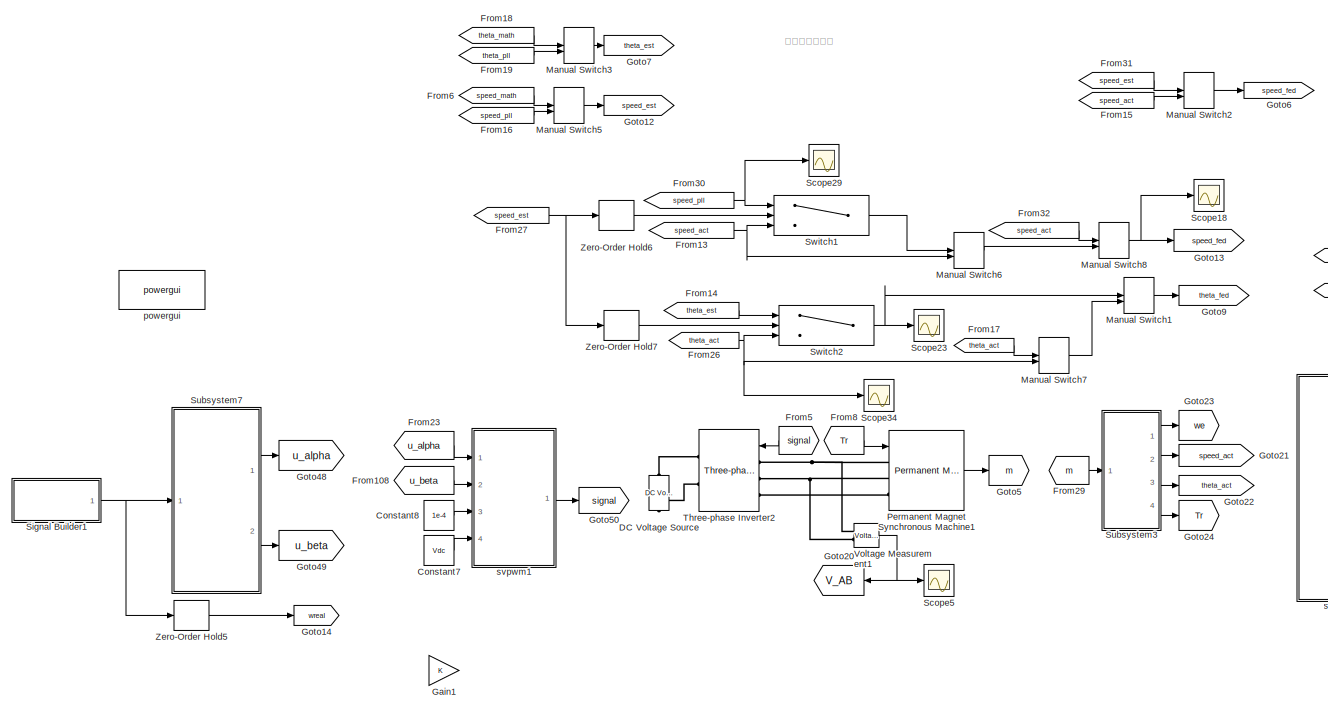
[diagram: root canvas - part 1/6, top center region]
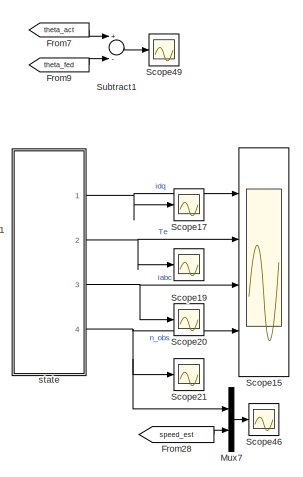
[diagram: root canvas - part 2/6, top center region]
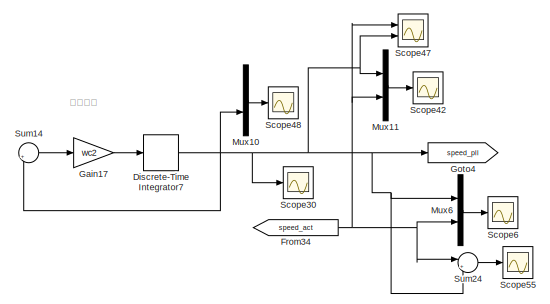
[diagram: root canvas - part 3/6, middle right region]
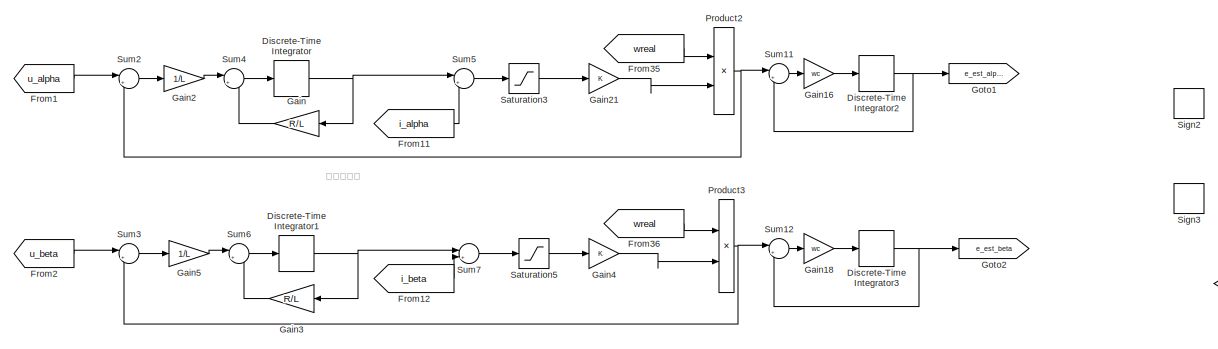
[diagram: root canvas - part 4/6, middle left region]
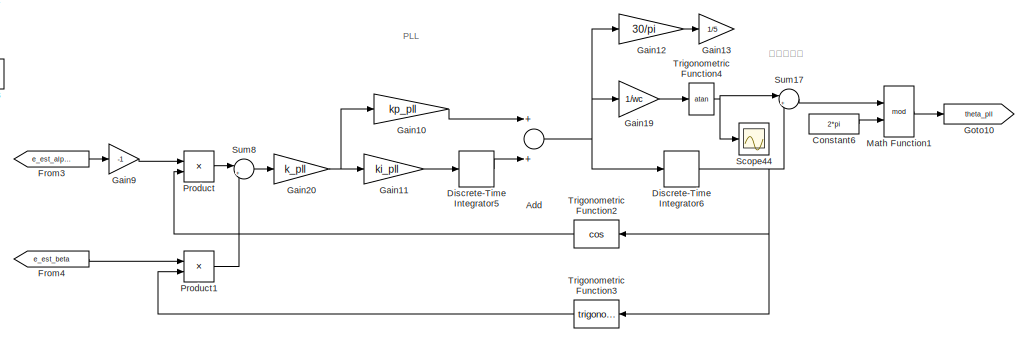
[diagram: root canvas - part 5/6, central region]
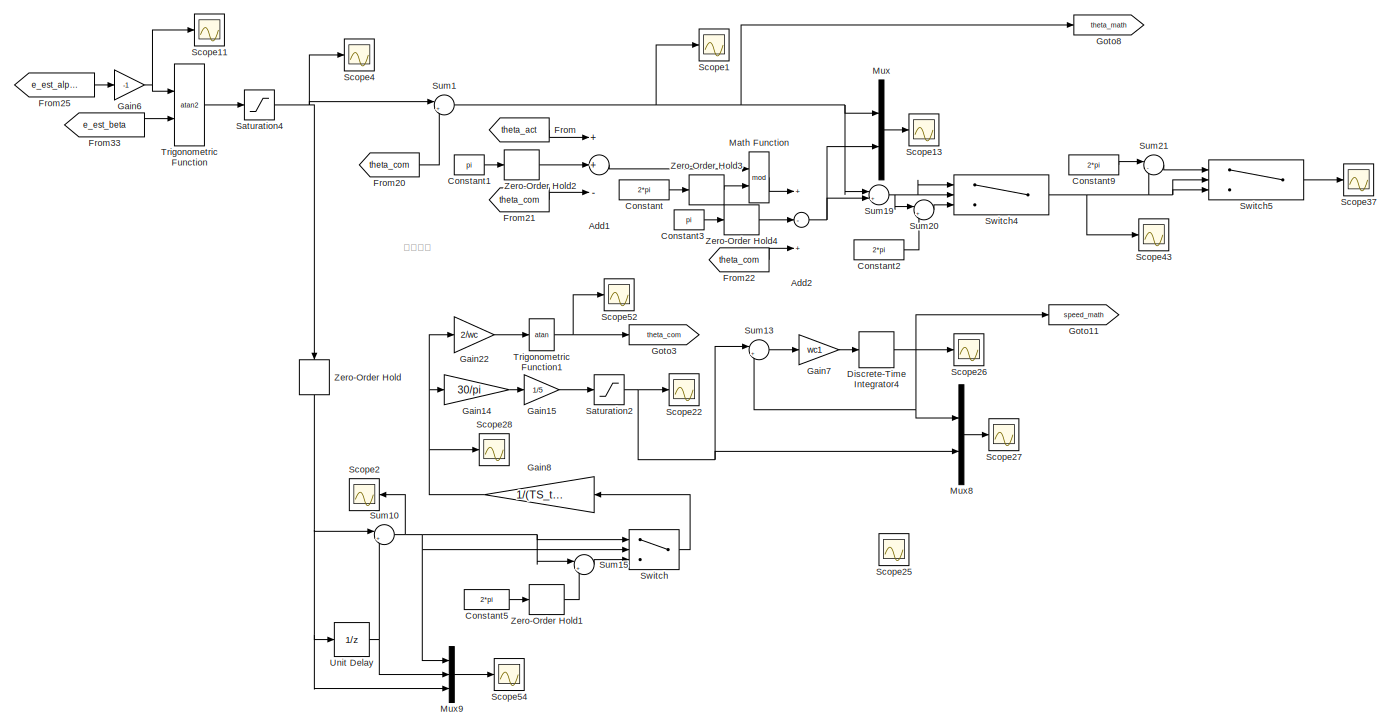
[diagram: root canvas - part 6/6, bottom left region]
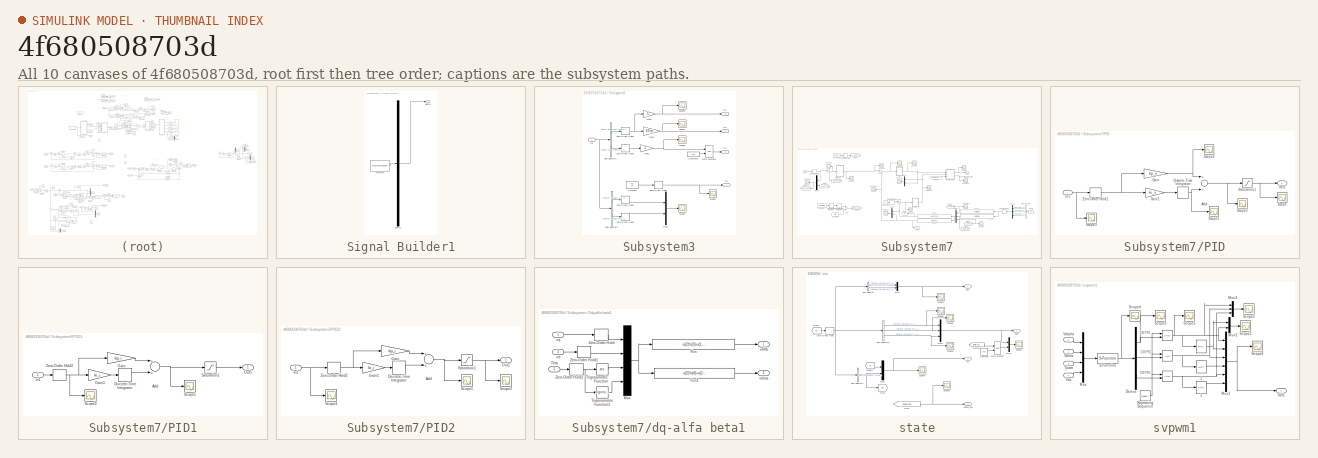
[diagram: thumbnail index - all 10 canvases of the model, root first then tree order]
MODEL slx_4f680508703d
KIND model
CONFIG InitFcn = parameter
CONFIG PreLoadFcn = parameter
BLOCK [Sum] Add
  InputSameDT = off
  OutDataTypeStr = Inherit: Inherit via internal rule
  Ports = [2, 1]
  SaturateOnIntegerOverflow = off
BLOCK [Sum] Add1
  InputSameDT = off
  Inputs = ++-
  OutDataTypeStr = Inherit: Inherit via internal rule
  Ports = [3, 1]
  SaturateOnIntegerOverflow = off
BLOCK [Sum] Add2
  InputSameDT = off
  Inputs = +-+
  OutDataTypeStr = Inherit: Inherit via internal rule
  Ports = [3, 1]
  SaturateOnIntegerOverflow = off
BLOCK [Constant] Constant
  Value = 2*pi
BLOCK [Constant] Constant1
  Value = pi
BLOCK [Constant] Constant2
  Value = 2*pi
BLOCK [Constant] Constant3
  Value = pi
BLOCK [Constant] Constant5
  Value = 2*pi
BLOCK [Constant] Constant6
  Value = 2*pi
BLOCK [Constant] Constant7
  Value = Vdc
BLOCK [Constant] Constant8
  Value = 1e-4
BLOCK [Constant] Constant9
  Value = 2*pi
BLOCK [Reference] DC Voltage Source  REF=powerlib/Electrical
Sources/DC Voltage Source
  Amplitude = Vdc
  Measurements = Voltage
  Ports = [0, 0, 0, 0, 0, 1, 1]
  SourceBlock = powerlib/Electrical\nSources/DC Voltage Source
  SourceType = DC Voltage Source
BLOCK [DiscreteIntegrator] Discrete-Time Integrator
  ICPrevOutput = DiscIntNeverNeededParam
  ICPrevScaledInput = DiscIntNeverNeededParam
  Ports = [1, 1]
  SampleTime = -1
BLOCK [DiscreteIntegrator] Discrete-Time Integrator1
  ICPrevOutput = DiscIntNeverNeededParam
  ICPrevScaledInput = DiscIntNeverNeededParam
  Ports = [1, 1]
  SampleTime = -1
BLOCK [DiscreteIntegrator] Discrete-Time Integrator2
  ICPrevOutput = DiscIntNeverNeededParam
  ICPrevScaledInput = DiscIntNeverNeededParam
  Ports = [1, 1]
  SampleTime = -1
BLOCK [DiscreteIntegrator] Discrete-Time Integrator3
  ICPrevOutput = DiscIntNeverNeededParam
  ICPrevScaledInput = DiscIntNeverNeededParam
  Ports = [1, 1]
  SampleTime = -1
BLOCK [DiscreteIntegrator] Discrete-Time Integrator4
  ICPrevOutput = DiscIntNeverNeededParam
  ICPrevScaledInput = DiscIntNeverNeededParam
  Ports = [1, 1]
  SampleTime = TS_time
BLOCK [DiscreteIntegrator] Discrete-Time Integrator5
  ICPrevOutput = DiscIntNeverNeededParam
  ICPrevScaledInput = DiscIntNeverNeededParam
  InitialConditionSetting = State (most efficient)
  Ports = [1, 1]
  SampleTime = -1
BLOCK [DiscreteIntegrator] Discrete-Time Integrator6
  ICPrevOutput = DiscIntNeverNeededParam
  ICPrevScaledInput = DiscIntNeverNeededParam
  Ports = [1, 1]
  SampleTime = -1
BLOCK [DiscreteIntegrator] Discrete-Time Integrator7
  ICPrevOutput = DiscIntNeverNeededParam
  ICPrevScaledInput = DiscIntNeverNeededParam
  Ports = [1, 1]
  SampleTime = TS_time
BLOCK [From] From
  GotoTag = theta_act
  TagVisibility = global
BLOCK [From] From1
  GotoTag = u_alpha
  TagVisibility = global
BLOCK [From] From108
  GotoTag = u_beta
  TagVisibility = global
BLOCK [From] From11
  GotoTag = i_alpha
  TagVisibility = global
BLOCK [From] From12
  GotoTag = i_beta
  TagVisibility = global
BLOCK [From] From13
  GotoTag = speed_act
  TagVisibility = global
BLOCK [From] From14
  GotoTag = theta_est
  TagVisibility = global
BLOCK [From] From15
  Commented = on
  GotoTag = speed_act
  TagVisibility = global
BLOCK [From] From16
  GotoTag = speed_pll
  TagVisibility = global
BLOCK [From] From17
  GotoTag = theta_act
  TagVisibility = global
BLOCK [From] From18
  GotoTag = theta_math
  TagVisibility = global
BLOCK [From] From19
  GotoTag = theta_pll
  TagVisibility = global
BLOCK [From] From2
  GotoTag = u_beta
  TagVisibility = global
BLOCK [From] From20
  GotoTag = theta_com
  TagVisibility = global
BLOCK [From] From21
  GotoTag = theta_com
  TagVisibility = global
BLOCK [From] From22
  GotoTag = theta_com
  TagVisibility = global
BLOCK [From] From23
  GotoTag = u_alpha
  TagVisibility = global
BLOCK [From] From25
  GotoTag = e_est_alpha
  TagVisibility = global
BLOCK [From] From26
  GotoTag = theta_act
  TagVisibility = global
BLOCK [From] From27
  GotoTag = speed_est
  TagVisibility = global
BLOCK [From] From28
  GotoTag = speed_est
  TagVisibility = global
BLOCK [From] From29
  GotoTag = m
  TagVisibility = global
BLOCK [From] From3
  GotoTag = e_est_alpha
  TagVisibility = global
BLOCK [From] From30
  GotoTag = speed_pll
  TagVisibility = global
BLOCK [From] From31
  Commented = on
  GotoTag = speed_est
  TagVisibility = global
BLOCK [From] From32
  GotoTag = speed_act
  TagVisibility = global
BLOCK [From] From33
  GotoTag = e_est_beta
  TagVisibility = global
BLOCK [From] From34
  GotoTag = speed_act
  TagVisibility = global
BLOCK [From] From35
  GotoTag = wreal
  TagVisibility = global
BLOCK [From] From36
  GotoTag = wreal
  TagVisibility = global
BLOCK [From] From4
  GotoTag = e_est_beta
  TagVisibility = global
BLOCK [From] From5
  GotoTag = signal
  TagVisibility = global
BLOCK [From] From6
  GotoTag = speed_math
  TagVisibility = global
BLOCK [From] From7
  GotoTag = theta_act
  TagVisibility = global
BLOCK [From] From8
  GotoTag = Tr
  TagVisibility = global
BLOCK [From] From9
  GotoTag = theta_fed
  TagVisibility = global
BLOCK [Gain] Gain
  Gain = R/L
  OutDataTypeStr = Inherit: Inherit via internal rule
  ParamDataTypeStr = Inherit: Inherit via internal rule
  SaturateOnIntegerOverflow = off
BLOCK [Gain] Gain1
  Gain = K
  OutDataTypeStr = Inherit: Inherit via internal rule
  ParamDataTypeStr = Inherit: Inherit via internal rule
  SaturateOnIntegerOverflow = off
BLOCK [Gain] Gain10
  Gain = kp_pll
  OutDataTypeStr = Inherit: Inherit via internal rule
  ParamDataTypeStr = Inherit: Inherit via internal rule
  SaturateOnIntegerOverflow = off
BLOCK [Gain] Gain11
  Gain = ki_pll
  OutDataTypeStr = Inherit: Inherit via internal rule
  ParamDataTypeStr = Inherit: Inherit via internal rule
  SaturateOnIntegerOverflow = off
BLOCK [Gain] Gain12
  Gain = 30/pi
  OutDataTypeStr = Inherit: Inherit via internal rule
  ParamDataTypeStr = Inherit: Inherit via internal rule
  SaturateOnIntegerOverflow = off
BLOCK [Gain] Gain13
  Gain = 1/5
  OutDataTypeStr = Inherit: Inherit via internal rule
  ParamDataTypeStr = Inherit: Inherit via internal rule
  SaturateOnIntegerOverflow = off
BLOCK [Gain] Gain14
  Gain = 30/pi
  OutDataTypeStr = Inherit: Inherit via internal rule
  ParamDataTypeStr = Inherit: Inherit via internal rule
  SaturateOnIntegerOverflow = off
BLOCK [Gain] Gain15
  Gain = 1/5
  OutDataTypeStr = Inherit: Inherit via internal rule
  ParamDataTypeStr = Inherit: Inherit via internal rule
  SaturateOnIntegerOverflow = off
BLOCK [Gain] Gain16
  Gain = wc
  OutDataTypeStr = Inherit: Inherit via internal rule
  ParamDataTypeStr = Inherit: Inherit via internal rule
  SaturateOnIntegerOverflow = off
BLOCK [Gain] Gain17
  Gain = wc2
  OutDataTypeStr = Inherit: Inherit via internal rule
  ParamDataTypeStr = Inherit: Inherit via internal rule
  SaturateOnIntegerOverflow = off
BLOCK [Gain] Gain18
  Gain = wc
  OutDataTypeStr = Inherit: Inherit via internal rule
  ParamDataTypeStr = Inherit: Inherit via internal rule
  SaturateOnIntegerOverflow = off
BLOCK [Gain] Gain19
  Gain = 1/wc
  OutDataTypeStr = Inherit: Inherit via internal rule
  ParamDataTypeStr = Inherit: Inherit via internal rule
  SaturateOnIntegerOverflow = off
BLOCK [Gain] Gain2
  Gain = 1/L
  OutDataTypeStr = Inherit: Inherit via internal rule
  ParamDataTypeStr = Inherit: Inherit via internal rule
  SaturateOnIntegerOverflow = off
BLOCK [Gain] Gain20
  Gain = k_pll
  OutDataTypeStr = Inherit: Inherit via internal rule
  ParamDataTypeStr = Inherit: Inherit via internal rule
  SaturateOnIntegerOverflow = off
BLOCK [Gain] Gain21
  Gain = K
  OutDataTypeStr = Inherit: Inherit via internal rule
  ParamDataTypeStr = Inherit: Inherit via internal rule
  SaturateOnIntegerOverflow = off
BLOCK [Gain] Gain22
  Gain = 2/wc
  OutDataTypeStr = Inherit: Inherit via internal rule
  ParamDataTypeStr = Inherit: Inherit via internal rule
  SaturateOnIntegerOverflow = off
BLOCK [Gain] Gain3
  Gain = R/L
  OutDataTypeStr = Inherit: Inherit via internal rule
  ParamDataTypeStr = Inherit: Inherit via internal rule
  SaturateOnIntegerOverflow = off
BLOCK [Gain] Gain4
  Gain = K
  OutDataTypeStr = Inherit: Inherit via internal rule
  ParamDataTypeStr = Inherit: Inherit via internal rule
  SaturateOnIntegerOverflow = off
BLOCK [Gain] Gain5
  Gain = 1/L
  OutDataTypeStr = Inherit: Inherit via internal rule
  ParamDataTypeStr = Inherit: Inherit via internal rule
  SaturateOnIntegerOverflow = off
BLOCK [Gain] Gain6
  Gain = -1
  OutDataTypeStr = Inherit: Inherit via internal rule
  ParamDataTypeStr = Inherit: Inherit via internal rule
  SaturateOnIntegerOverflow = off
BLOCK [Gain] Gain7
  Gain = wc1
  OutDataTypeStr = Inherit: Inherit via internal rule
  ParamDataTypeStr = Inherit: Inherit via internal rule
  SaturateOnIntegerOverflow = off
BLOCK [Gain] Gain8
  Gain = 1/(TS_time)
  OutDataTypeStr = Inherit: Inherit via internal rule
  ParamDataTypeStr = Inherit: Inherit via internal rule
  SaturateOnIntegerOverflow = off
BLOCK [Gain] Gain9
  Gain = -1
  OutDataTypeStr = Inherit: Inherit via internal rule
  ParamDataTypeStr = Inherit: Inherit via internal rule
  SaturateOnIntegerOverflow = off
BLOCK [Goto] Goto1
  GotoTag = e_est_alpha
  TagVisibility = global
BLOCK [Goto] Goto10
  GotoTag = theta_pll
  TagVisibility = global
BLOCK [Goto] Goto11
  GotoTag = speed_math
  TagVisibility = global
BLOCK [Goto] Goto12
  GotoTag = speed_est
  TagVisibility = global
BLOCK [Goto] Goto13
  GotoTag = speed_fed
  TagVisibility = global
BLOCK [Goto] Goto14
  GotoTag = wreal
  TagVisibility = global
BLOCK [Goto] Goto2
  GotoTag = e_est_beta
  TagVisibility = global
BLOCK [Goto] Goto20
  GotoTag = V_AB
  TagVisibility = global
BLOCK [Goto] Goto21
  GotoTag = speed_act
  TagVisibility = global
BLOCK [Goto] Goto22
  GotoTag = theta_act
  TagVisibility = global
BLOCK [Goto] Goto23
  GotoTag = we
  TagVisibility = global
BLOCK [Goto] Goto24
  GotoTag = Tr
  TagVisibility = global
BLOCK [Goto] Goto3
  GotoTag = theta_com
  TagVisibility = global
BLOCK [Goto] Goto4
  GotoTag = speed_pll
  TagVisibility = global
BLOCK [Goto] Goto48
  GotoTag = u_alpha
  TagVisibility = global
BLOCK [Goto] Goto49
  GotoTag = u_beta
  TagVisibility = global
BLOCK [Goto] Goto5
  GotoTag = m
  TagVisibility = global
BLOCK [Goto] Goto50
  GotoTag = signal
  TagVisibility = global
BLOCK [Goto] Goto6
  Commented = on
  GotoTag = speed_fed
  TagVisibility = global
BLOCK [Goto] Goto7
  GotoTag = theta_est
  TagVisibility = global
BLOCK [Goto] Goto8
  GotoTag = theta_math
  TagVisibility = global
BLOCK [Goto] Goto9
  GotoTag = theta_fed
  TagVisibility = global
BLOCK [ManualSwitch] Manual Switch1
  CurrentSetting = 0
BLOCK [ManualSwitch] Manual Switch2
  Commented = on
BLOCK [ManualSwitch] Manual Switch3
  CurrentSetting = 0
BLOCK [ManualSwitch] Manual Switch5
  CurrentSetting = 0
BLOCK [ManualSwitch] Manual Switch6
BLOCK [ManualSwitch] Manual Switch7
BLOCK [ManualSwitch] Manual Switch8
BLOCK [Math] Math Function
  Operator = mod
  Ports = [2, 1]
BLOCK [Math] Math Function1
  Operator = mod
  Ports = [2, 1]
BLOCK [Mux] Mux
  DisplayOption = bar
  Inputs = 2
  Ports = [2, 1]
BLOCK [Mux] Mux10
  DisplayOption = bar
  Inputs = 2
  Ports = [2, 1]
BLOCK [Mux] Mux11
  DisplayOption = bar
  Inputs = 2
  Ports = [2, 1]
BLOCK [Mux] Mux6
  DisplayOption = bar
  Inputs = 2
  Ports = [2, 1]
BLOCK [Mux] Mux7
  DisplayOption = bar
  Inputs = 2
  Ports = [2, 1]
BLOCK [Mux] Mux8
  DisplayOption = bar
  Inputs = 2
  Ports = [2, 1]
BLOCK [Mux] Mux9
  DisplayOption = bar
  Inputs = 3
  Ports = [3, 1]
BLOCK [Reference] Permanent Magnet Synchronous Machine1  REF=powerlib/Machines/Permanent Magnet
Synchronous Machine
  AttributesFormatString = \n
  Flat = 0
  Flux = 0.1654
  FluxDistribution = Sinusoidal
  Inductance = 0
  InitialConditions = [0,0, 0,0]
  InitialConditions5ph = [0 0 0 0 0 0]
  La = 0.0287
  MachineConstant = Voltage Constant (V_peak L-L / krpm)
  MeasurementBus = off
  Mechanical = [0.001,0,5]
  MechanicalLoad = Torque Tm
  NbPhases = 3
  PolePairs = 3
  Ports = [1, 1, 0, 0, 0, 3]
  PresetModel = No
  RefAngle = Aligned with phase A axis (original Park)
  Resistance = 3
  RotorType = Round
  ShowDetailedParameters = on
  SourceBlock = powerlib/Machines/Permanent Magnet\nSynchronous Machine
  SourceType = Permanent Magnet Synchronous Machine
  TorqueCst = 1.2405
  TsBlock = -1
  TsPowergui = 0
  VoltageCst = 150
  dqInductances = [0.01,0.02]
BLOCK [Product] Product
  InputSameDT = off
  OutDataTypeStr = Inherit: Inherit via internal rule
  Ports = [2, 1]
  RndMeth = Floor
  SaturateOnIntegerOverflow = off
BLOCK [Product] Product1
  InputSameDT = off
  OutDataTypeStr = Inherit: Inherit via internal rule
  Ports = [2, 1]
  RndMeth = Floor
  SaturateOnIntegerOverflow = off
BLOCK [Product] Product2
  InputSameDT = off
  OutDataTypeStr = Inherit: Inherit via internal rule
  Ports = [2, 1]
  RndMeth = Floor
  SaturateOnIntegerOverflow = off
BLOCK [Product] Product3
  InputSameDT = off
  OutDataTypeStr = Inherit: Inherit via internal rule
  Ports = [2, 1]
  RndMeth = Floor
  SaturateOnIntegerOverflow = off
BLOCK [Saturate] Saturation2
  InputPortMap = u0
  LowerLimit = -1000
  Ports = [1, 1]
  UpperLimit = 5000
BLOCK [Saturate] Saturation3
  InputPortMap = u0
  LowerLimit = -upper
  Ports = [1, 1]
  UpperLimit = upper
BLOCK [Saturate] Saturation4
  InputPortMap = u0
  LowerLimit = -pi
  Ports = [1, 1]
  UpperLimit = pi
BLOCK [Saturate] Saturation5
  InputPortMap = u0
  LowerLimit = -upper
  Ports = [1, 1]
  UpperLimit = upper
BLOCK [Scope] Scope1
  Floating = off
  LimitDataPoints = off
  NumInputPorts = 1
  Ports = [1]
  SaveName = ScopeData7
  ShowLegends = off
  YMax = 700
  YMin = -700
  ZoomMode = xonly
BLOCK [Scope] Scope11
  Floating = off
  LimitDataPoints = off
  NumInputPorts = 1
  Ports = [1]
  SaveName = ScopeData25
  ShowLegends = off
  YMax = 700
  YMin = -700
  ZoomMode = xonly
BLOCK [Scope] Scope13
  Floating = off
  LimitDataPoints = off
  NumInputPorts = 1
  Ports = [1]
  SaveName = ScopeData32
  ShowLegends = off
  YMax = 700
  YMin = -700
  ZoomMode = xonly
BLOCK [Scope] Scope15
  DataFormat = StructureWithTime
  Floating = off
  LimitDataPoints = off
  NumInputPorts = 4
  Ports = [4]
  SaveName = ScopeData20
  ShowLegends = off
  TimeRange = 1.5
  YMax = 15~35~60~900
  YMin = -17.5~-5~-80~-400
  ZoomMode = yonly
BLOCK [Scope] Scope17
  Floating = off
  LimitDataPoints = off
  NumInputPorts = 1
  Ports = [1]
  SaveName = ScopeData18
  ShowLegends = off
  YMax = 700
  YMin = -700
  ZoomMode = yonly
BLOCK [Scope] Scope18
  Floating = off
  LimitDataPoints = off
  NumInputPorts = 1
  Ports = [1]
  SaveName = ScopeData35
  ShowLegends = off
  YMax = 700
  YMin = -700
BLOCK [Scope] Scope19
  Floating = off
  LimitDataPoints = off
  NumInputPorts = 1
  Ports = [1]
  SaveName = ScopeData19
  ShowLegends = off
  TimeRange = 1.5
  YMax = 700
  YMin = -700
  ZoomMode = yonly
BLOCK [Scope] Scope2
  Floating = off
  LimitDataPoints = off
  NumInputPorts = 1
  Ports = [1]
  SaveName = ScopeData10
  ShowLegends = off
  YMax = 700
  YMin = -700
  ZoomMode = xonly
BLOCK [Scope] Scope20
  Floating = off
  LimitDataPoints = off
  NumInputPorts = 1
  Ports = [1]
  SaveName = ScopeData1
  ShowLegends = off
  YMax = 0.04
  YMin = -0.04
  ZoomMode = xonly
BLOCK [Scope] Scope21
  Floating = off
  LimitDataPoints = off
  NumInputPorts = 1
  Ports = [1]
  SaveName = ScopeData4
  ShowLegends = off
  TimeRange = 0.5
  YMax = 4003
  YMin = 4000
BLOCK [Scope] Scope22
  Floating = off
  LimitDataPoints = off
  NumInputPorts = 1
  Ports = [1]
  SaveName = ScopeData36
  ShowLegends = off
  YMax = 700
  YMin = -700
  ZoomMode = yonly
BLOCK [Scope] Scope23
  Floating = off
  LimitDataPoints = off
  NumInputPorts = 1
  Ports = [1]
  SaveName = ScopeData39
  ShowLegends = off
  YMax = 700
  YMin = -700
BLOCK [Scope] Scope25
  Floating = off
  LimitDataPoints = off
  NumInputPorts = 1
  Ports = [1]
  SaveName = ScopeData41
  ShowLegends = off
  YMax = 700
  YMin = -700
  ZoomMode = yonly
BLOCK [Scope] Scope26
  Floating = off
  LimitDataPoints = off
  NumInputPorts = 1
  Ports = [1]
  SaveName = ScopeData42
  ShowLegends = off
  YMax = 700
  YMin = -700
BLOCK [Scope] Scope27
  Floating = off
  LimitDataPoints = off
  NumInputPorts = 1
  Ports = [1]
  SaveName = ScopeData43
  ShowLegends = off
  YMax = 700
  YMin = -700
  ZoomMode = xonly
BLOCK [Scope] Scope28
  Floating = off
  LimitDataPoints = off
  NumInputPorts = 1
  Ports = [1]
  SaveName = ScopeData44
  ShowLegends = off
  YMax = 700
  YMin = -700
  ZoomMode = yonly
BLOCK [Scope] Scope29
  Floating = off
  LimitDataPoints = off
  NumInputPorts = 1
  Ports = [1]
  SaveName = ScopeData45
  ShowLegends = off
  YMax = 700
  YMin = -700
BLOCK [Scope] Scope30
  Floating = off
  LimitDataPoints = off
  NumInputPorts = 1
  Ports = [1]
  SaveName = ScopeData46
  ShowLegends = off
  YMax = 700
  YMin = -700
BLOCK [Scope] Scope34
  Floating = off
  LimitDataPoints = off
  NumInputPorts = 1
  Ports = [1]
  SaveName = ScopeData74
  ShowLegends = off
  YMax = 700
  YMin = -700
BLOCK [Scope] Scope37
  Floating = off
  LimitDataPoints = off
  NumInputPorts = 1
  Ports = [1]
  SaveName = ScopeData54
  ShowLegends = off
  YMax = 700
  YMin = -700
  ZoomMode = xonly
BLOCK [Scope] Scope4
  Floating = off
  LimitDataPoints = off
  NumInputPorts = 1
  Ports = [1]
  SaveName = ScopeData13
  ShowLegends = off
  YMax = 700
  YMin = -700
  ZoomMode = xonly
BLOCK [Scope] Scope42
  Floating = off
  LimitDataPoints = off
  NumInputPorts = 1
  Ports = [1]
  SaveName = ScopeData60
  ShowLegends = off
  YMax = 700
  YMin = -700
  ZoomMode = yonly
BLOCK [Scope] Scope43
  Floating = off
  LimitDataPoints = off
  NumInputPorts = 1
  Ports = [1]
  SaveName = ScopeData61
  ShowLegends = off
  YMax = 700
  YMin = -700
  ZoomMode = xonly
BLOCK [Scope] Scope44
  Floating = off
  LimitDataPoints = off
  NumInputPorts = 1
  Ports = [1]
  SaveName = ScopeData62
  ShowLegends = off
  YMax = 700
  YMin = -700
  ZoomMode = xonly
BLOCK [Scope] Scope46
  Floating = off
  LimitDataPoints = off
  NumInputPorts = 1
  Ports = [1]
  SaveName = ScopeData63
  ShowLegends = off
  TimeRange = 0.5
  YMax = 600
  YMin = 0
BLOCK [Scope] Scope47
  Floating = off
  LimitDataPoints = off
  NumInputPorts = 2
  Ports = [2]
  SaveName = ScopeData76
  ShowLegends = off
  YMax = 700~5
  YMin = -700~-5
  ZoomMode = xonly
BLOCK [Scope] Scope48
  Floating = off
  LimitDataPoints = off
  NumInputPorts = 1
  Ports = [1]
  SaveName = ScopeData73
  ShowLegends = off
  YMax = 700
  YMin = -700
BLOCK [Scope] Scope49
  Floating = off
  LimitDataPoints = off
  NumInputPorts = 1
  Ports = [1]
  SaveName = ScopeData80
  ShowLegends = off
  YMax = 700
  YMin = -700
BLOCK [Scope] Scope5
  Floating = off
  LimitDataPoints = off
  NumInputPorts = 1
  Ports = [1]
  SaveName = ScopeData78
  ShowLegends = off
  YMax = 700
  YMin = -700
  ZoomMode = xonly
BLOCK [Scope] Scope52
  Floating = off
  LimitDataPoints = off
  NumInputPorts = 1
  Ports = [1]
  SaveName = ScopeData77
  ShowLegends = off
  YMax = 700
  YMin = -700
  ZoomMode = yonly
BLOCK [Scope] Scope54
  Floating = off
  LimitDataPoints = off
  NumInputPorts = 1
  Ports = [1]
  SaveName = ScopeData81
  ShowLegends = off
  YMax = 700
  YMin = -700
  ZoomMode = xonly
BLOCK [Scope] Scope55
  Floating = off
  LimitDataPoints = off
  NumInputPorts = 1
  Ports = [1]
  SaveName = ScopeData85
  ShowLegends = off
  YMax = 700
  YMin = -700
BLOCK [Scope] Scope6
  Floating = off
  LimitDataPoints = off
  NumInputPorts = 1
  Ports = [1]
  SaveName = ScopeData14
  ShowLegends = off
  YMax = 700
  YMin = -700
BLOCK [Signum] Sign2
BLOCK [Signum] Sign3
BLOCK [SubSystem] Signal Builder1
  ClipboardFcn = sigbuilder_block('clipboard');
  CloseFcn = sigbuilder_block('close');
  ContinueFcn = sigbuilder_block('continue');
  CopyFcn = sigbuilder_block('copy');
  DeleteFcn = sigbuilder_block('delete');
  LoadFcn = sigbuilder_block('load');
  MaskHideContents = on
  ModelCloseFcn = sigbuilder_block('modelClose');
  NameChangeFcn = sigbuilder_block('namechange');
  OpenFcn = sigbuilder_block('open',[6.75 -95.25 1138.5 566.25 ]);
  PauseFcn = sigbuilder_block('pause');
  Ports = [0, 1]
  PreSaveFcn = sigbuilder_block('preSave');
  RequestExecContextInheritance = off
  StartFcn = sigbuilder_block('start');
  StopFcn = sigbuilder_block('stop');
  Tag = STV Subsys
BLOCK [Demux] Signal Builder1/Demux
  Outputs = 1
  Ports = [1, 1]
  Tag = STV Demux
BLOCK [FromWorkspace] Signal Builder1/FromWs
  SampleTime = 0
  Tag = STV FromWs
  VariableName = tuvar
  ZeroCross = on
BLOCK [Outport] Signal Builder1/Signal 1
  IconDisplay = Port number
  Tag = STV Outport
BLOCK [SubSystem] Subsystem3
  Ports = [1, 4]
  RequestExecContextInheritance = off
BLOCK [BusSelector] Subsystem3/Bus Selector1
  OutputSignals = Rotor speed wm (rad/s),Rotor angle thetam (rad)
  Ports = [1, 2]
BLOCK [BusSelector] Subsystem3/Bus Selector2
  OutputSignals = Stator voltage Vs_d (V),Stator voltage Vs_q (V)
  Ports = [1, 2]
BLOCK [Constant] Subsystem3/Constant
BLOCK [Constant] Subsystem3/Constant6
  Value = 2*pi
BLOCK [Gain] Subsystem3/Gain1
  Gain = 5
  OutDataTypeStr = Inherit: Inherit via internal rule
  ParamDataTypeStr = Inherit: Inherit via internal rule
  SaturateOnIntegerOverflow = off
BLOCK [Gain] Subsystem3/Gain2
  Gain = 5
  OutDataTypeStr = Inherit: Inherit via internal rule
  ParamDataTypeStr = Inherit: Inherit via internal rule
  SaturateOnIntegerOverflow = off
BLOCK [Gain] Subsystem3/Gain3
  Gain = 30/pi
  OutDataTypeStr = Inherit: Inherit via internal rule
  ParamDataTypeStr = Inherit: Inherit via internal rule
  SaturateOnIntegerOverflow = off
BLOCK [Inport] Subsystem3/In1
  IconDisplay = Port number
BLOCK [Math] Subsystem3/Math Function1
  Operator = mod
  Ports = [2, 1]
BLOCK [Mux] Subsystem3/Mux1
  DisplayOption = bar
  Inputs = 2
  Ports = [2, 1]
BLOCK [Scope] Subsystem3/Scope1
  Floating = off
  LimitDataPoints = off
  NumInputPorts = 1
  Ports = [1]
  SaveName = ScopeData9
  ShowLegends = off
  YMax = 700
  YMin = -500
BLOCK [Scope] Subsystem3/Scope2
  Floating = off
  LimitDataPoints = off
  NumInputPorts = 1
  Ports = [1]
  SaveName = ScopeData149
  ShowLegends = off
  YMax = 400
  YMin = -25
BLOCK [Scope] Subsystem3/Scope3
  Floating = off
  LimitDataPoints = off
  NumInputPorts = 1
  Ports = [1]
  SaveName = ScopeData79
  ShowLegends = off
  YMax = 191.5
  YMin = 185.5
BLOCK [Scope] Subsystem3/Scope4
  Floating = off
  LimitDataPoints = off
  NumInputPorts = 1
  Ports = [1]
  SaveName = ScopeData88
  ShowLegends = off
  YMax = 400
  YMin = -25
BLOCK [Scope] Subsystem3/Scope5
  Floating = off
  LimitDataPoints = off
  NumInputPorts = 1
  Ports = [1]
  SaveName = ScopeData90
  ShowLegends = off
  YMax = 202.5
  YMin = 195
  ZoomMode = yonly
BLOCK [Outport] Subsystem3/Tr1
  IconDisplay = Port number
BLOCK [Outport] Subsystem3/Tr2
  IconDisplay = Port number
  Port = 2
BLOCK [Outport] Subsystem3/Tr3
  IconDisplay = Port number
  Port = 3
BLOCK [Outport] Subsystem3/Tr4
  IconDisplay = Port number
  Port = 4
BLOCK [ZeroOrderHold] Subsystem3/Zero-Order Hold1
  SampleTime = TS
BLOCK [ZeroOrderHold] Subsystem3/Zero-Order Hold2
  SampleTime = TS
BLOCK [ZeroOrderHold] Subsystem3/Zero-Order Hold3
  SampleTime = TS
BLOCK [ZeroOrderHold] Subsystem3/Zero-Order Hold4
  SampleTime = TS
BLOCK [ZeroOrderHold] Subsystem3/Zero-Order Hold5
  SampleTime = TS
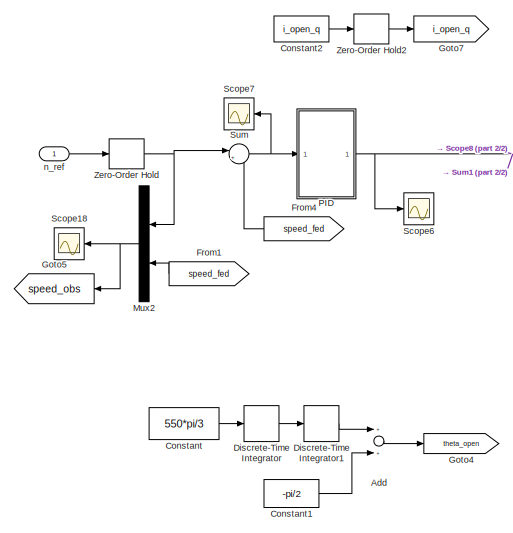
[diagram: Subsystem7 - part 1/2, left side, full height]
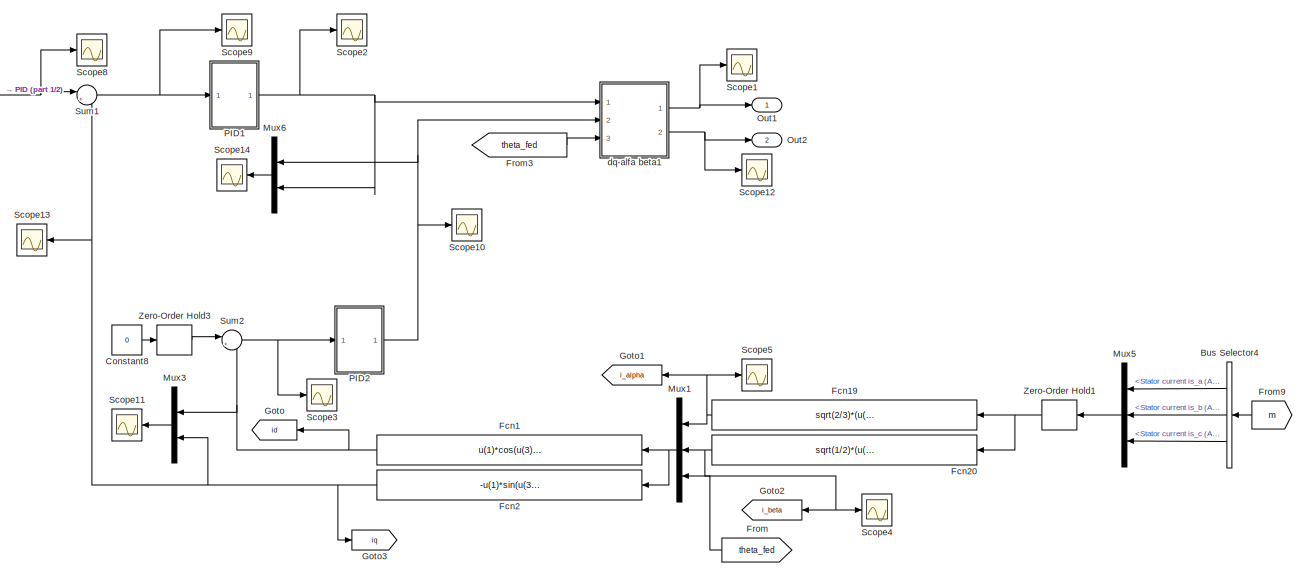
[diagram: Subsystem7 - part 2/2, center side, full height]
BLOCK [SubSystem] Subsystem7
  Ports = [1, 2]
  RequestExecContextInheritance = off
BLOCK [Sum] Subsystem7/Add
  Commented = on
  InputSameDT = off
  OutDataTypeStr = Inherit: Inherit via internal rule
  Ports = [2, 1]
  SaturateOnIntegerOverflow = off
BLOCK [BusSelector] Subsystem7/Bus Selector4
  OutputSignals = Stator current is_a (A),Stator current is_b (A),Stator current is_c (A)
  Ports = [1, 3]
BLOCK [Constant] Subsystem7/Constant
  Commented = on
  Value = 550*pi/3
BLOCK [Constant] Subsystem7/Constant1
  Commented = on
  Value = -pi/2
BLOCK [Constant] Subsystem7/Constant2
  Commented = on
  Value = i_open_q
BLOCK [Constant] Subsystem7/Constant8
  Value = 0
BLOCK [DiscreteIntegrator] Subsystem7/Discrete-Time Integrator
  Commented = on
  ICPrevOutput = DiscIntNeverNeededParam
  ICPrevScaledInput = DiscIntNeverNeededParam
  InitialConditionSetting = State (most efficient)
  Ports = [1, 1]
  SampleTime = -1
BLOCK [DiscreteIntegrator] Subsystem7/Discrete-Time Integrator1
  Commented = on
  ICPrevOutput = DiscIntNeverNeededParam
  ICPrevScaledInput = DiscIntNeverNeededParam
  InitialConditionSetting = State (most efficient)
  Ports = [1, 1]
  SampleTime = -1
BLOCK [Fcn] Subsystem7/Fcn1
  Expr = u(1)*cos(u(3))+u(2)*sin(u(3))
BLOCK [Fcn] Subsystem7/Fcn19
  Expr = sqrt(2/3)*(u(1)-u(2)/2-u(3)/2)
BLOCK [Fcn] Subsystem7/Fcn2
  Expr = -u(1)*sin(u(3))+u(2)*cos(u(3))
BLOCK [Fcn] Subsystem7/Fcn20
  Expr = sqrt(1/2)*(u(2)-u(3))
BLOCK [From] Subsystem7/From
  GotoTag = theta_fed
  TagVisibility = global
BLOCK [From] Subsystem7/From1
  GotoTag = speed_fed
  TagVisibility = global
BLOCK [From] Subsystem7/From3
  GotoTag = theta_fed
  TagVisibility = global
BLOCK [From] Subsystem7/From4
  GotoTag = speed_fed
  TagVisibility = global
BLOCK [From] Subsystem7/From9
  GotoTag = m
  TagVisibility = global
BLOCK [Goto] Subsystem7/Goto
  GotoTag = id
  TagVisibility = global
BLOCK [Goto] Subsystem7/Goto1
  GotoTag = i_alpha
  TagVisibility = global
BLOCK [Goto] Subsystem7/Goto2
  GotoTag = i_beta
  TagVisibility = global
BLOCK [Goto] Subsystem7/Goto3
  GotoTag = iq
  TagVisibility = global
BLOCK [Goto] Subsystem7/Goto4
  Commented = on
  GotoTag = theta_open
  TagVisibility = global
BLOCK [Goto] Subsystem7/Goto5
  GotoTag = speed_obs
  TagVisibility = global
BLOCK [Goto] Subsystem7/Goto7
  Commented = on
  GotoTag = i_open_q
  TagVisibility = global
BLOCK [Mux] Subsystem7/Mux1
  DisplayOption = bar
  Inputs = 3
  Ports = [3, 1]
BLOCK [Mux] Subsystem7/Mux2
  DisplayOption = bar
  Inputs = 2
  Ports = [2, 1]
BLOCK [Mux] Subsystem7/Mux3
  DisplayOption = bar
  Inputs = 2
  Ports = [2, 1]
BLOCK [Mux] Subsystem7/Mux5
  DisplayOption = bar
  Inputs = 3
  Ports = [3, 1]
BLOCK [Mux] Subsystem7/Mux6
  DisplayOption = bar
  Inputs = 2
  Ports = [2, 1]
BLOCK [Outport] Subsystem7/Out1
  IconDisplay = Port number
BLOCK [Outport] Subsystem7/Out2
  IconDisplay = Port number
  Port = 2
BLOCK [SubSystem] Subsystem7/PID
  Ports = [1, 1]
  RequestExecContextInheritance = off
BLOCK [Sum] Subsystem7/PID/Add
  InputSameDT = off
  OutDataTypeStr = Inherit: Inherit via internal rule
  Ports = [2, 1]
  SaturateOnIntegerOverflow = off
BLOCK [DiscreteIntegrator] Subsystem7/PID/Discrete-Time Integrator
  ICPrevOutput = DiscIntNeverNeededParam
  ICPrevScaledInput = DiscIntNeverNeededParam
  InitialConditionSetting = State (most efficient)
  Ports = [1, 1]
  SampleTime = -1
BLOCK [Gain] Subsystem7/PID/Gain
  Gain = kp_v
  OutDataTypeStr = Inherit: Inherit via internal rule
  ParamDataTypeStr = Inherit: Inherit via internal rule
  SaturateOnIntegerOverflow = off
BLOCK [Gain] Subsystem7/PID/Gain1
  Gain = ki_v
  OutDataTypeStr = Inherit: Inherit via internal rule
  ParamDataTypeStr = Inherit: Inherit via internal rule
  SaturateOnIntegerOverflow = off
BLOCK [Inport] Subsystem7/PID/In1
  IconDisplay = Port number
BLOCK [Outport] Subsystem7/PID/Out1
  IconDisplay = Port number
BLOCK [Saturate] Subsystem7/PID/Saturation1
  InputPortMap = u0
  LowerLimit = -2
  Ports = [1, 1]
  UpperLimit = 3
BLOCK [Scope] Subsystem7/PID/Scope
  Floating = off
  LimitDataPoints = off
  NumInputPorts = 1
  Ports = [1]
  SaveName = ScopeData12
  ShowLegends = off
  ZoomMode = yonly
BLOCK [Scope] Subsystem7/PID/Scope1
  Floating = off
  LimitDataPoints = off
  NumInputPorts = 1
  Ports = [1]
  SaveName = ScopeData27
  ShowLegends = off
BLOCK [Scope] Subsystem7/PID/Scope2
  Floating = off
  LimitDataPoints = off
  NumInputPorts = 1
  Ports = [1]
  SaveName = ScopeData68
  ShowLegends = off
  ZoomMode = yonly
BLOCK [Scope] Subsystem7/PID/Scope3
  Floating = off
  LimitDataPoints = off
  NumInputPorts = 1
  Ports = [1]
  SaveName = ScopeData69
  ShowLegends = off
  ZoomMode = yonly
BLOCK [Scope] Subsystem7/PID/Scope4
  Floating = off
  LimitDataPoints = off
  NumInputPorts = 1
  Ports = [1]
  SaveName = ScopeData87
  ShowLegends = off
  ZoomMode = yonly
BLOCK [ZeroOrderHold] Subsystem7/PID/Zero-Order Hold1
  SampleTime = TS
BLOCK [SubSystem] Subsystem7/PID1
  Ports = [1, 1]
  RequestExecContextInheritance = off
BLOCK [Sum] Subsystem7/PID1/Add
  InputSameDT = off
  OutDataTypeStr = Inherit: Inherit via internal rule
  Ports = [2, 1]
  SaturateOnIntegerOverflow = off
BLOCK [DiscreteIntegrator] Subsystem7/PID1/Discrete-Time Integrator
  ICPrevOutput = DiscIntNeverNeededParam
  ICPrevScaledInput = DiscIntNeverNeededParam
  InitialConditionSetting = State (most efficient)
  Ports = [1, 1]
  SampleTime = -1
BLOCK [Gain] Subsystem7/PID1/Gain
  Gain = kp_i
  OutDataTypeStr = Inherit: Inherit via internal rule
  ParamDataTypeStr = Inherit: Inherit via internal rule
  SaturateOnIntegerOverflow = off
BLOCK [Gain] Subsystem7/PID1/Gain1
  Gain = ki_i
  OutDataTypeStr = Inherit: Inherit via internal rule
  ParamDataTypeStr = Inherit: Inherit via internal rule
  SaturateOnIntegerOverflow = off
BLOCK [Inport] Subsystem7/PID1/In1
  IconDisplay = Port number
BLOCK [Outport] Subsystem7/PID1/Out1
  IconDisplay = Port number
BLOCK [Saturate] Subsystem7/PID1/Saturation1
  InputPortMap = u0
  LowerLimit = -500
  Ports = [1, 1]
  UpperLimit = 500
BLOCK [Scope] Subsystem7/PID1/Scope1
  Floating = off
  LimitDataPoints = off
  NumInputPorts = 1
  Ports = [1]
  SaveName = ScopeData64
  ShowLegends = off
  ZoomMode = yonly
BLOCK [Scope] Subsystem7/PID1/Scope3
  Floating = off
  LimitDataPoints = off
  NumInputPorts = 1
  Ports = [1]
  SaveName = ScopeData65
  ShowLegends = off
  ZoomMode = yonly
BLOCK [ZeroOrderHold] Subsystem7/PID1/Zero-Order Hold2
  SampleTime = TS
BLOCK [SubSystem] Subsystem7/PID2
  Ports = [1, 1]
  RequestExecContextInheritance = off
BLOCK [Sum] Subsystem7/PID2/Add
  InputSameDT = off
  OutDataTypeStr = Inherit: Inherit via internal rule
  Ports = [2, 1]
  SaturateOnIntegerOverflow = off
BLOCK [DiscreteIntegrator] Subsystem7/PID2/Discrete-Time Integrator
  ICPrevOutput = DiscIntNeverNeededParam
  ICPrevScaledInput = DiscIntNeverNeededParam
  InitialConditionSetting = State (most efficient)
  Ports = [1, 1]
  SampleTime = -1
BLOCK [Gain] Subsystem7/PID2/Gain
  Gain = kp_i
  OutDataTypeStr = Inherit: Inherit via internal rule
  ParamDataTypeStr = Inherit: Inherit via internal rule
  SaturateOnIntegerOverflow = off
BLOCK [Gain] Subsystem7/PID2/Gain1
  Gain = ki_i
  OutDataTypeStr = Inherit: Inherit via internal rule
  ParamDataTypeStr = Inherit: Inherit via internal rule
  SaturateOnIntegerOverflow = off
BLOCK [Inport] Subsystem7/PID2/In1
  IconDisplay = Port number
BLOCK [Outport] Subsystem7/PID2/Out1
  IconDisplay = Port number
BLOCK [Saturate] Subsystem7/PID2/Saturation1
  InputPortMap = u0
  LowerLimit = -500
  Ports = [1, 1]
  UpperLimit = 500
BLOCK [Scope] Subsystem7/PID2/Scope1
  Floating = off
  LimitDataPoints = off
  NumInputPorts = 1
  Ports = [1]
  SaveName = ScopeData67
  ShowLegends = off
  YMax = -115
  YMin = -185
  ZoomMode = yonly
BLOCK [Scope] Subsystem7/PID2/Scope2
  Floating = off
  LimitDataPoints = off
  NumInputPorts = 1
  Ports = [1]
  SaveName = ScopeData66
  ShowLegends = off
  ZoomMode = yonly
BLOCK [Scope] Subsystem7/PID2/Scope3
  Floating = off
  LimitDataPoints = off
  NumInputPorts = 1
  Ports = [1]
  SaveName = ScopeData70
  ShowLegends = off
  ZoomMode = yonly
BLOCK [ZeroOrderHold] Subsystem7/PID2/Zero-Order Hold2
  SampleTime = TS
BLOCK [Scope] Subsystem7/Scope1
  Floating = off
  LimitDataPoints = off
  NumInputPorts = 1
  Ports = [1]
  SaveName = ScopeData37
  ShowLegends = off
  ZoomMode = xonly
BLOCK [Scope] Subsystem7/Scope10
  Floating = off
  LimitDataPoints = off
  NumInputPorts = 1
  Ports = [1]
  SaveName = ScopeData30
  ShowLegends = off
  ZoomMode = yonly
BLOCK [Scope] Subsystem7/Scope11
  DataFormat = StructureWithTime
  Floating = off
  LimitDataPoints = off
  NumInputPorts = 1
  Ports = [1]
  SampleTime = 0
  SaveName = ScopeData71
  ShowLegends = off
  TimeRange = 1.7
  YMax = 17.5
  YMin = -15
  ZoomMode = yonly
BLOCK [Scope] Subsystem7/Scope12
  Floating = off
  LimitDataPoints = off
  NumInputPorts = 1
  Ports = [1]
  SaveName = ScopeData17
  ShowLegends = off
  ZoomMode = xonly
BLOCK [Scope] Subsystem7/Scope13
  Floating = off
  LimitDataPoints = off
  NumInputPorts = 1
  Ports = [1]
  SaveName = ScopeData75
  ShowLegends = off
  ZoomMode = yonly
BLOCK [Scope] Subsystem7/Scope14
  DataFormat = StructureWithTime
  Floating = off
  LimitDataPoints = off
  NumInputPorts = 1
  Ports = [1]
  SampleTime = 0
  SaveName = ScopeData106
  ShowLegends = off
  TimeRange = 1.7
  YMax = 17.5
  YMin = -15
BLOCK [Scope] Subsystem7/Scope18
  DataFormat = StructureWithTime
  Floating = off
  LimitDataPoints = off
  NumInputPorts = 1
  Ports = [1]
  SaveName = ScopeData21
  ShowLegends = off
  TimeRange = 0.01073731461302402
  YMax = 1006.526183941498
  YMin = 996.9949713569969
BLOCK [Scope] Subsystem7/Scope2
  Floating = off
  LimitDataPoints = off
  NumInputPorts = 1
  Ports = [1]
  SaveName = ScopeData22
  ShowLegends = off
  ZoomMode = yonly
BLOCK [Scope] Subsystem7/Scope3
  Floating = off
  LimitDataPoints = off
  NumInputPorts = 1
  Ports = [1]
  SaveName = ScopeData23
  ShowLegends = off
  ZoomMode = yonly
BLOCK [Scope] Subsystem7/Scope4
  Floating = off
  LimitDataPoints = off
  NumInputPorts = 1
  Ports = [1]
  SaveName = ScopeData47
  ShowLegends = off
  ZoomMode = yonly
BLOCK [Scope] Subsystem7/Scope5
  Floating = off
  LimitDataPoints = off
  NumInputPorts = 1
  Ports = [1]
  SaveName = ScopeData48
  ShowLegends = off
BLOCK [Scope] Subsystem7/Scope6
  Floating = off
  LimitDataPoints = off
  NumInputPorts = 1
  Ports = [1]
  SaveName = ScopeData38
  ShowLegends = off
BLOCK [Scope] Subsystem7/Scope7
  Floating = off
  LimitDataPoints = off
  NumInputPorts = 1
  Ports = [1]
  SaveName = ScopeData26
  ShowLegends = off
BLOCK [Scope] Subsystem7/Scope8
  Floating = off
  LimitDataPoints = off
  NumInputPorts = 1
  Ports = [1]
  SaveName = ScopeData28
  ShowLegends = off
  ZoomMode = yonly
BLOCK [Scope] Subsystem7/Scope9
  Floating = off
  LimitDataPoints = off
  NumInputPorts = 1
  Ports = [1]
  SaveName = ScopeData29
  ShowLegends = off
  ZoomMode = yonly
BLOCK [Sum] Subsystem7/Sum
  IconShape = round
  InputSameDT = off
  Inputs = |+-
  OutDataTypeStr = Inherit: Inherit via internal rule
  Ports = [2, 1]
  SaturateOnIntegerOverflow = off
BLOCK [Sum] Subsystem7/Sum1
  IconShape = round
  InputSameDT = off
  Inputs = |+-
  OutDataTypeStr = Inherit: Inherit via internal rule
  Ports = [2, 1]
  SaturateOnIntegerOverflow = off
BLOCK [Sum] Subsystem7/Sum2
  IconShape = round
  InputSameDT = off
  Inputs = |+-
  OutDataTypeStr = Inherit: Inherit via internal rule
  Ports = [2, 1]
  SaturateOnIntegerOverflow = off
BLOCK [ZeroOrderHold] Subsystem7/Zero-Order Hold
  SampleTime = TS
BLOCK [ZeroOrderHold] Subsystem7/Zero-Order Hold1
  SampleTime = TS
BLOCK [ZeroOrderHold] Subsystem7/Zero-Order Hold2
  Commented = on
  SampleTime = TS
BLOCK [ZeroOrderHold] Subsystem7/Zero-Order Hold3
  SampleTime = TS
BLOCK [SubSystem] Subsystem7/dq-alfa beta1
  Ports = [3, 2]
  RequestExecContextInheritance = off
BLOCK [Fcn] Subsystem7/dq-alfa beta1/Fcn
  Expr = u(2)*u(3)-u(1)*u(4)
BLOCK [Fcn] Subsystem7/dq-alfa beta1/Fcn1
  Expr = u(2)*u(4)+u(1)*u(3)
BLOCK [Mux] Subsystem7/dq-alfa beta1/Mux
  Ports = [4, 1]
BLOCK [Inport] Subsystem7/dq-alfa beta1/Teta
  IconDisplay = Port number
  Port = 3
BLOCK [Trigonometry] Subsystem7/dq-alfa beta1/Trigonometric Function
  Operator = cos
  Ports = [1, 1]
BLOCK [Trigonometry] Subsystem7/dq-alfa beta1/Trigonometric Function1
  Ports = [1, 1]
BLOCK [ZeroOrderHold] Subsystem7/dq-alfa beta1/Zero-Order Hold
  SampleTime = TS
BLOCK [ZeroOrderHold] Subsystem7/dq-alfa beta1/Zero-Order Hold1
  SampleTime = TS
BLOCK [ZeroOrderHold] Subsystem7/dq-alfa beta1/Zero-Order Hold2
  SampleTime = TS
BLOCK [Outport] Subsystem7/dq-alfa beta1/valfa
  IconDisplay = Port number
BLOCK [Outport] Subsystem7/dq-alfa beta1/vbeta
  IconDisplay = Port number
  Port = 2
BLOCK [Inport] Subsystem7/dq-alfa beta1/vd
  IconDisplay = Port number
  Port = 2
BLOCK [Inport] Subsystem7/dq-alfa beta1/vq
  IconDisplay = Port number
BLOCK [Inport] Subsystem7/n_ref
  IconDisplay = Port number
BLOCK [Sum] Subtract1
  InputSameDT = off
  Inputs = +-
  OutDataTypeStr = Inherit: Inherit via internal rule
  Ports = [2, 1]
  SaturateOnIntegerOverflow = off
BLOCK [Sum] Sum1
  IconShape = round
  InputSameDT = off
  Inputs = |++
  OutDataTypeStr = Inherit: Inherit via internal rule
  Ports = [2, 1]
  SaturateOnIntegerOverflow = off
BLOCK [Sum] Sum10
  IconShape = round
  InputSameDT = off
  Inputs = |+-
  OutDataTypeStr = Inherit: Inherit via internal rule
  Ports = [2, 1]
  SaturateOnIntegerOverflow = off
BLOCK [Sum] Sum11
  IconShape = round
  InputSameDT = off
  Inputs = |+-
  OutDataTypeStr = Inherit: Inherit via internal rule
  Ports = [2, 1]
  SaturateOnIntegerOverflow = off
BLOCK [Sum] Sum12
  IconShape = round
  InputSameDT = off
  Inputs = |+-
  OutDataTypeStr = Inherit: Inherit via internal rule
  Ports = [2, 1]
  SaturateOnIntegerOverflow = off
BLOCK [Sum] Sum13
  IconShape = round
  InputSameDT = off
  Inputs = |+-
  OutDataTypeStr = Inherit: Inherit via internal rule
  Ports = [2, 1]
  SaturateOnIntegerOverflow = off
BLOCK [Sum] Sum14
  IconShape = round
  InputSameDT = off
  Inputs = |+-
  OutDataTypeStr = Inherit: Inherit via internal rule
  Ports = [2, 1]
  SaturateOnIntegerOverflow = off
BLOCK [Sum] Sum15
  IconShape = round
  InputSameDT = off
  Inputs = |++
  OutDataTypeStr = Inherit: Inherit via internal rule
  Ports = [2, 1]
  SaturateOnIntegerOverflow = off
BLOCK [Sum] Sum17
  IconShape = round
  InputSameDT = off
  Inputs = |++
  OutDataTypeStr = Inherit: Inherit via internal rule
  Ports = [2, 1]
  SaturateOnIntegerOverflow = off
BLOCK [Sum] Sum19
  IconShape = round
  InputSameDT = off
  Inputs = |+-
  OutDataTypeStr = Inherit: Inherit via internal rule
  Ports = [2, 1]
  SaturateOnIntegerOverflow = off
BLOCK [Sum] Sum2
  IconShape = round
  InputSameDT = off
  Inputs = |+-
  OutDataTypeStr = Inherit: Inherit via internal rule
  Ports = [2, 1]
  SaturateOnIntegerOverflow = off
BLOCK [Sum] Sum20
  IconShape = round
  InputSameDT = off
  Inputs = |++
  OutDataTypeStr = Inherit: Inherit via internal rule
  Ports = [2, 1]
  SaturateOnIntegerOverflow = off
BLOCK [Sum] Sum21
  IconShape = round
  InputSameDT = off
  Inputs = |-+
  OutDataTypeStr = Inherit: Inherit via internal rule
  Ports = [2, 1]
  SaturateOnIntegerOverflow = off
BLOCK [Sum] Sum24
  IconShape = round
  InputSameDT = off
  Inputs = |+-
  OutDataTypeStr = Inherit: Inherit via internal rule
  Ports = [2, 1]
  SaturateOnIntegerOverflow = off
BLOCK [Sum] Sum3
  IconShape = round
  InputSameDT = off
  Inputs = |+-
  OutDataTypeStr = Inherit: Inherit via internal rule
  Ports = [2, 1]
  SaturateOnIntegerOverflow = off
BLOCK [Sum] Sum4
  IconShape = round
  InputSameDT = off
  Inputs = |+-
  OutDataTypeStr = Inherit: Inherit via internal rule
  Ports = [2, 1]
  SaturateOnIntegerOverflow = off
BLOCK [Sum] Sum5
  IconShape = round
  InputSameDT = off
  Inputs = |+-
  OutDataTypeStr = Inherit: Inherit via internal rule
  Ports = [2, 1]
  SaturateOnIntegerOverflow = off
BLOCK [Sum] Sum6
  IconShape = round
  InputSameDT = off
  Inputs = |+-
  OutDataTypeStr = Inherit: Inherit via internal rule
  Ports = [2, 1]
  SaturateOnIntegerOverflow = off
BLOCK [Sum] Sum7
  IconShape = round
  InputSameDT = off
  Inputs = |+-
  OutDataTypeStr = Inherit: Inherit via internal rule
  Ports = [2, 1]
  SaturateOnIntegerOverflow = off
BLOCK [Sum] Sum8
  IconShape = round
  InputSameDT = off
  Inputs = |+-
  OutDataTypeStr = Inherit: Inherit via internal rule
  Ports = [2, 1]
  SaturateOnIntegerOverflow = off
BLOCK [Switch] Switch
  InputSameDT = off
  SaturateOnIntegerOverflow = off
BLOCK [Switch] Switch1
  Criteria = u2 > Threshold
  InputSameDT = off
  SaturateOnIntegerOverflow = off
  Threshold = Threshold
BLOCK [Switch] Switch2
  Criteria = u2 > Threshold
  InputSameDT = off
  SaturateOnIntegerOverflow = off
  Threshold = Threshold
BLOCK [Switch] Switch4
  Criteria = u2 > Threshold
  InputSameDT = off
  SaturateOnIntegerOverflow = off
  Threshold = -pi
BLOCK [Switch] Switch5
  Criteria = u2 > Threshold
  InputSameDT = off
  SaturateOnIntegerOverflow = off
  Threshold = pi
BLOCK [Reference] Three-phase Inverter2  REF=AC6DriveInternalModels/Three-phase Inverter
  Arms = 3
  Device = IGBT / Diodes
  Flux = 0.175
  ForwardVoltage = 0
  ForwardVoltages = [0.8,0.8]
  GTOparameters = [0,0]
  IGBTParameters = [1e-6,2e-6]
  Lon = 0
  Measurements = All voltages and currents
  Ports = [1, 0, 0, 0, 0, 3, 2]
  Resistance = 0.2
  Ron = 1e-3
  SnubberCapacitance = inf
  SnubberResistance = 5000
  SourceBlock = AC6DriveInternalModels/Three-phase Inverter
  SourceFrequency = 60
  SourceType = SPSdrives Converter
  converterType = Inverter
  dqInductances = [8.5e-3,8.5e-3]
  p = 4
BLOCK [Trigonometry] Trigonometric Function
  Operator = atan2
  Ports = [2, 1]
BLOCK [Trigonometry] Trigonometric Function1
  Operator = atan
  Ports = [1, 1]
BLOCK [Trigonometry] Trigonometric Function2
  Operator = cos
  Ports = [1, 1]
BLOCK [Trigonometry] Trigonometric Function3
  Ports = [1, 1]
BLOCK [Trigonometry] Trigonometric Function4
  Operator = atan
  Ports = [1, 1]
BLOCK [UnitDelay] Unit Delay
  InputProcessing = Elements as channels (sample based)
  SampleTime = -1
BLOCK [Reference] Voltage Measurement1  REF=powerlib/Measurements/Voltage Measurement
  OutputType = Complex
  PSBequivalent = 0
  PhasorSimulation = off
  Ports = [0, 1, 0, 0, 0, 2]
  SourceBlock = powerlib/Measurements/Voltage Measurement
  SourceType = Voltage Measurement
  UserDataPersistent = on
BLOCK [ZeroOrderHold] Zero-Order Hold
  SampleTime = TS_time
BLOCK [ZeroOrderHold] Zero-Order Hold1
  SampleTime = TS
BLOCK [ZeroOrderHold] Zero-Order Hold2
  SampleTime = TS
BLOCK [ZeroOrderHold] Zero-Order Hold3
  SampleTime = TS
BLOCK [ZeroOrderHold] Zero-Order Hold4
  SampleTime = TS
BLOCK [ZeroOrderHold] Zero-Order Hold5
  SampleTime = TS
BLOCK [ZeroOrderHold] Zero-Order Hold6
  SampleTime = TS
BLOCK [ZeroOrderHold] Zero-Order Hold7
  SampleTime = TS
BLOCK [Reference] powergui  REF=powerlib/powergui
  DisableRonSwitches = off
  DisableSnubberDevices = off
  DisableVfSwitches = off
  DisplayEquations = off
  DisplayStyle = 1
  EnableUseOfTLC = off
  ErrMax = 1e-4
  Frange = [0:2:500]
  FreqAxis = on
  FunctionMessages = off
  HookPort = off
  Interpol = off
  Iterations = 50
  MaxFrequency = 500
  Pbase = 100e6
  Ports = []
  Priority = 1
  ResistiveCurrentMeasurement = off
  RestoreLinks = warning
  RmsSteady = 1
  SPID = off
  SampleTime = 1e-6
  ShowGrid = off
  SolverType = Tustin
  SourceBlock = powerlib/powergui
  SourceType = PSB option menu block
  StartTime = 2.2
  SwTol = 0
  Ts = 100
  UnitsV = kV
  UnitsW = MW
  UserDataPersistent = on
  Xlog = on
  Ylog = off
  ZoomFFT = off
  cycles = 50
  display = off
  echomessages = off
  frequency = 60
  frequencyindice = 0
  frequencyindicesteady = 1
  fundamental = 200
  methode = off
  save = off
  structure = iabc1
  variable = ZData
  x0status = blocks
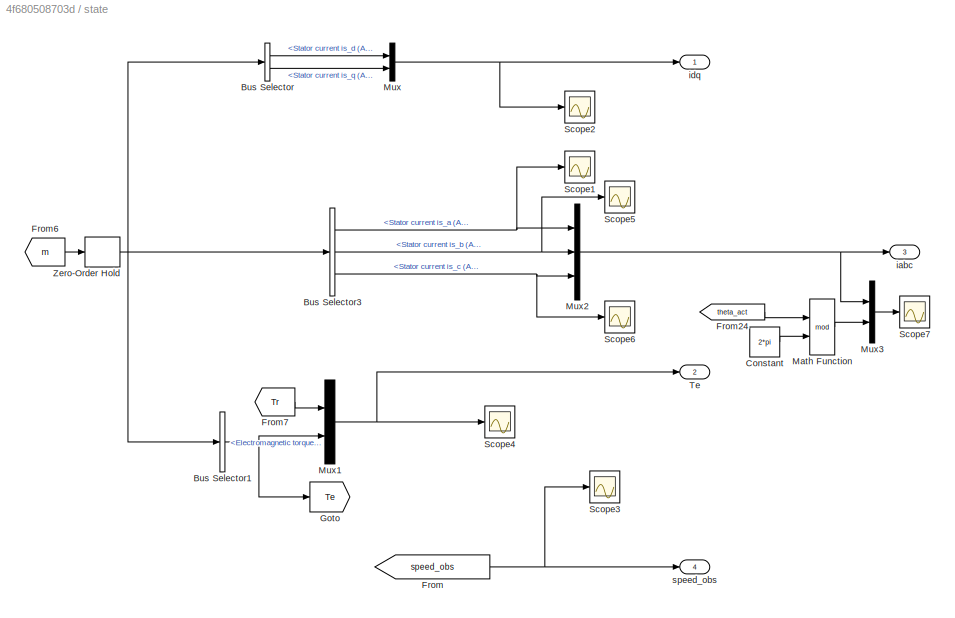
BLOCK [SubSystem] state
  Ports = [0, 4]
  RequestExecContextInheritance = off
BLOCK [BusSelector] state/Bus Selector
  OutputSignals = Stator current is_d (A),Stator current is_q (A)
  Ports = [1, 2]
BLOCK [BusSelector] state/Bus Selector1
  OutputSignals = Electromagnetic torque Te (N*m)
  Ports = [1, 1]
BLOCK [BusSelector] state/Bus Selector3
  OutputSignals = Stator current is_a (A),Stator current is_b (A),Stator current is_c (A)
  Ports = [1, 3]
BLOCK [Constant] state/Constant
  Value = 2*pi
BLOCK [From] state/From
  GotoTag = speed_obs
  TagVisibility = global
BLOCK [From] state/From24
  GotoTag = theta_act
  TagVisibility = global
BLOCK [From] state/From6
  GotoTag = m
  TagVisibility = global
BLOCK [From] state/From7
  GotoTag = Tr
  TagVisibility = global
BLOCK [Goto] state/Goto
  GotoTag = Te
  TagVisibility = global
BLOCK [Math] state/Math Function
  Operator = mod
  Ports = [2, 1]
BLOCK [Mux] state/Mux
  DisplayOption = bar
  Inputs = 2
  Ports = [2, 1]
BLOCK [Mux] state/Mux1
  DisplayOption = bar
  Inputs = 2
  Ports = [2, 1]
BLOCK [Mux] state/Mux2
  DisplayOption = bar
  Inputs = 3
  Ports = [3, 1]
BLOCK [Mux] state/Mux3
  DisplayOption = bar
  Inputs = 2
  Ports = [2, 1]
BLOCK [Scope] state/Scope1
  DataFormat = StructureWithTime
  Floating = off
  LimitDataPoints = off
  NumInputPorts = 1
  Ports = [1]
  SampleTime = 0
  SaveName = iabc
  SaveToWorkspace = on
  ShowLegends = off
  TimeRange = 0.7000000000000001
  YMax = 8
  YMin = -4
  ZoomMode = yonly
BLOCK [Scope] state/Scope2
  DataFormat = StructureWithTime
  Floating = off
  LimitDataPoints = off
  NumInputPorts = 1
  Ports = [1]
  SampleTime = 0
  SaveName = iabc1
  SaveToWorkspace = on
  ShowLegends = off
  TimeRange = 0.7000000000000001
  YMax = 18
  YMin = -2
BLOCK [Scope] state/Scope3
  DataFormat = StructureWithTime
  Floating = off
  LimitDataPoints = off
  NumInputPorts = 1
  Ports = [1]
  SampleTime = 0
  SaveName = iabc2
  SaveToWorkspace = on
  ShowLegends = off
  TimeRange = 0.7000000000000001
  YMax = 1712
  YMin = 1700
BLOCK [Scope] state/Scope4
  DataFormat = StructureWithTime
  Floating = off
  LimitDataPoints = off
  NumInputPorts = 1
  Ports = [1]
  SampleTime = 0
  SaveName = iabc3
  SaveToWorkspace = on
  ShowLegends = off
  TimeRange = 0.7000000000000001
  YMax = 8
  YMin = -4
BLOCK [Scope] state/Scope5
  DataFormat = StructureWithTime
  Floating = off
  LimitDataPoints = off
  NumInputPorts = 1
  Ports = [1]
  SampleTime = 0
  SaveName = iabc4
  SaveToWorkspace = on
  ShowLegends = off
  TimeRange = 0.7000000000000001
  YMax = 8
  YMin = -4
  ZoomMode = yonly
BLOCK [Scope] state/Scope6
  DataFormat = StructureWithTime
  Floating = off
  LimitDataPoints = off
  NumInputPorts = 1
  Ports = [1]
  SampleTime = 0
  SaveName = iabc5
  SaveToWorkspace = on
  ShowLegends = off
  TimeRange = 0.7000000000000001
  YMax = 8
  YMin = -4
  ZoomMode = yonly
BLOCK [Scope] state/Scope7
  DataFormat = StructureWithTime
  Floating = off
  LimitDataPoints = off
  NumInputPorts = 1
  Ports = [1]
  SampleTime = 0
  SaveName = iabc6
  SaveToWorkspace = on
  ShowLegends = off
  TimeRange = 0.7000000000000001
  YMax = 8
  YMin = -4
  ZoomMode = xonly
BLOCK [Outport] state/Te
  IconDisplay = Port number
  Port = 2
BLOCK [ZeroOrderHold] state/Zero-Order Hold
  SampleTime = TS
BLOCK [Outport] state/iabc
  IconDisplay = Port number
  Port = 3
BLOCK [Outport] state/idq
  IconDisplay = Port number
BLOCK [Outport] state/speed_obs
  IconDisplay = Port number
  Port = 4
BLOCK [SubSystem] svpwm1
  Ports = [4, 1]
  RequestExecContextInheritance = off
BLOCK [RelationalOperator] svpwm1/ 
  InputSameDT = off
  Ports = [2, 1]
  ZeroCross = off
BLOCK [RelationalOperator] svpwm1/  
  InputSameDT = off
  OutDataTypeStr = boolean
  Ports = [2, 1]
BLOCK [RelationalOperator] svpwm1/   
  InputSameDT = off
  OutDataTypeStr = boolean
  Ports = [2, 1]
BLOCK [Logic] svpwm1/    
  AllPortsSameDT = off
  Inputs = 1
  Operator = NOT
  OutDataTypeStr = boolean
  Ports = [1, 1]
BLOCK [Logic] svpwm1/    1
  AllPortsSameDT = off
  Inputs = 1
  Operator = NOT
  OutDataTypeStr = boolean
  Ports = [1, 1]
BLOCK [Logic] svpwm1/    2
  AllPortsSameDT = off
  Inputs = 1
  Operator = NOT
  OutDataTypeStr = boolean
  Ports = [1, 1]
BLOCK [Demux] svpwm1/Demux
  DisplayOption = bar
  Outputs = 3
  Ports = [1, 3]
BLOCK [Mux] svpwm1/Mux
  DisplayOption = bar
  Ports = [4, 1]
BLOCK [Mux] svpwm1/Mux1
  DisplayOption = bar
  Inputs = 6
  Ports = [6, 1]
BLOCK [Mux] svpwm1/Mux2
  DisplayOption = bar
  Inputs = 2
  Ports = [2, 1]
BLOCK [Mux] svpwm1/Mux3
  DisplayOption = bar
  Inputs = 3
  Ports = [3, 1]
BLOCK [Outport] svpwm1/Out1
  IconDisplay = Port number
BLOCK [Reference] svpwm1/Repeating Sequence  REF=simulink/Sources/Repeating
Sequence
  Ports = [0, 1]
  SourceBlock = simulink/Sources/Repeating\nSequence
  SourceType = Repeating table
  rep_seq_t = [0 0.00005 0.0001]
  rep_seq_y = [0 0.00005 0]
BLOCK [S-Function] svpwm1/S-Function
  EnableBusSupport = off
  FunctionName = svpwm
  Ports = [1, 1]
BLOCK [Scope] svpwm1/Scope1
  DataFormat = StructureWithTime
  Floating = off
  LimitDataPoints = off
  NumInputPorts = 1
  Ports = [1]
  SampleTime = 0
  SaveName = ScopeData3
  ShowLegends = off
  TimeRange = 1
  YMax = 2
  YMin = -1
  ZoomMode = yonly
BLOCK [Scope] svpwm1/Scope2
  DataFormat = StructureWithTime
  Floating = off
  LimitDataPoints = off
  NumInputPorts = 1
  Ports = [1]
  SampleTime = 0
  SaveName = ScopeData5
  ShowLegends = off
  TimeRange = 0.2
  YMax = 5.25e-005
  YMin = -2.5e-006
BLOCK [Scope] svpwm1/Scope3
  DataFormat = StructureWithTime
  Floating = off
  LimitDataPoints = off
  NumInputPorts = 1
  Ports = [1]
  SampleTime = 0
  ShowLegends = off
  TimeRange = 0.2
  YMax = 5.25e-005
  YMin = -2.5e-006
BLOCK [Scope] svpwm1/Scope4
  DataFormat = StructureWithTime
  Floating = off
  LimitDataPoints = off
  NumInputPorts = 1
  Ports = [1]
  SampleTime = 0
  SaveName = ScopeData6
  ShowLegends = off
  TimeRange = 0.2
  YMax = 5.25e-005
  YMin = -2.5e-006
  ZoomMode = xonly
BLOCK [Scope] svpwm1/Scope5
  DataFormat = StructureWithTime
  Floating = off
  LimitDataPoints = off
  NumInputPorts = 1
  Ports = [1]
  SampleTime = 0
  SaveName = ScopeData2
  ShowLegends = off
  TimeRange = 0.2
  YMax = 5.25e-005
  YMin = -2.5e-006
BLOCK [Scope] svpwm1/Scope6
  DataFormat = StructureWithTime
  Floating = off
  LimitDataPoints = off
  NumInputPorts = 1
  Ports = [1]
  SampleTime = 0
  SaveName = ScopeData8
  ShowLegends = off
  TimeRange = 0.2
  YMax = 5.25e-005
  YMin = -2.5e-006
BLOCK [Inport] svpwm1/Tpwm
  IconDisplay = Port number
  Port = 3
BLOCK [Inport] svpwm1/Valpha
  IconDisplay = Port number
BLOCK [Inport] svpwm1/Vbeta
  IconDisplay = Port number
  Port = 2
BLOCK [Inport] svpwm1/Vdc
  IconDisplay = Port number
  Port = 4
ANNOTATION (root): 速度、角度选择
ANNOTATION (root): 低通滤波
ANNOTATION (root): 加角度补偿
ANNOTATION (root): 数学方法
ANNOTATION (root): 滑模观测器
ANNOTATION (root): PLL
ANNOTATION svpwm1: CMPR1
ANNOTATION svpwm1: CMPR2
ANNOTATION svpwm1: CMPR3
LINE Add1:1 -> Math Function:1
NET Add2:1 -> Mux:2, Sum19:2
NET Add:1 -> Discrete-Time Integrator6:1, Gain12:1, Gain19:1
LINE Constant1:1 -> Zero-Order Hold2:1
LINE Constant2:1 -> Sum20:2
LINE Constant3:1 -> Zero-Order Hold4:1
LINE Constant5:1 -> Zero-Order Hold1:1
LINE Constant6:1 -> Math Function1:2
LINE Constant7:1 -> svpwm1:4
LINE Constant8:1 -> svpwm1:3
LINE Constant9:1 -> Sum21:1
LINE Constant:1 -> Zero-Order Hold3:1
NET Discrete-Time Integrator1:1 -> Gain3:1, Sum7:1
NET Discrete-Time Integrator2:1 -> Goto1:1, Sum11:2
NET Discrete-Time Integrator3:1 -> Goto2:1, Sum12:2
NET Discrete-Time Integrator4:1 -> Goto11:1, Mux8:1, Scope26:1, Sum13:2
LINE Discrete-Time Integrator5:1 -> Add:2
NET Discrete-Time Integrator6:1 -> Sum17:2, Trigonometric Function2:1, Trigonometric Function3:1
NET Discrete-Time Integrator7:1 -> Goto4:1, Mux10:2, Mux11:1, Mux6:1, Scope30:1, Scope47:2, Sum14:2, Sum24:2
NET Discrete-Time Integrator:1 -> Gain:1, Sum5:1
LINE From108:1 -> svpwm1:2
LINE From11:1 -> Sum5:2
LINE From12:1 -> Sum7:2
NET From13:1 -> Manual Switch6:2, Switch1:3
LINE From14:1 -> Switch2:1
LINE From15:1 -> Manual Switch2:2
LINE From16:1 -> Manual Switch5:2
LINE From17:1 -> Manual Switch7:1
LINE From18:1 -> Manual Switch3:1
LINE From19:1 -> Manual Switch3:2
LINE From1:1 -> Sum2:1
LINE From20:1 -> Sum1:2
LINE From21:1 -> Add1:3
LINE From22:1 -> Add2:3
LINE From23:1 -> svpwm1:1
LINE From25:1 -> Gain6:1
NET From26:1 -> Manual Switch7:2, Scope34:1, Switch2:3
NET From27:1 -> Zero-Order Hold6:1, Zero-Order Hold7:1
LINE From28:1 -> Mux7:2
LINE From29:1 -> Subsystem3:1
LINE From2:1 -> Sum3:1
NET From30:1 -> Scope29:1, Switch1:1
LINE From31:1 -> Manual Switch2:1
LINE From32:1 -> Manual Switch8:1
LINE From33:1 -> Trigonometric Function:2
NET From34:1 -> Mux11:2, Mux6:2, Scope47:1, Sum24:1
LINE From35:1 -> Product2:1
LINE From36:1 -> Product3:1
LINE From3:1 -> Gain9:1
LINE From4:1 -> Product1:1
LINE From5:1 -> Three-phase Inverter2:1
LINE From6:1 -> Manual Switch5:1
LINE From7:1 -> Subtract1:1
LINE From8:1 -> Permanent Magnet Synchronous Machine1:1
LINE From9:1 -> Subtract1:2
LINE From:1 -> Add1:1
LINE Gain10:1 -> Add:1
LINE Gain11:1 -> Discrete-Time Integrator5:1
LINE Gain12:1 -> Gain13:1
LINE Gain14:1 -> Gain15:1
LINE Gain15:1 -> Saturation2:1
LINE Gain16:1 -> Discrete-Time Integrator2:1
LINE Gain17:1 -> Discrete-Time Integrator7:1
LINE Gain18:1 -> Discrete-Time Integrator3:1
LINE Gain19:1 -> Trigonometric Function4:1
NET Gain20:1 -> Gain10:1, Gain11:1
LINE Gain21:1 -> Product2:2
LINE Gain22:1 -> Trigonometric Function1:1
LINE Gain2:1 -> Sum4:1
LINE Gain3:1 -> Sum6:2
LINE Gain4:1 -> Product3:2
LINE Gain5:1 -> Sum6:1
NET Gain6:1 -> Scope11:1, Trigonometric Function:1
LINE Gain7:1 -> Discrete-Time Integrator4:1
NET Gain8:1 -> Gain14:1, Gain22:1, Scope28:1
LINE Gain9:1 -> Product:1
LINE Gain:1 -> Sum4:2
LINE Manual Switch1:1 -> Goto9:1
LINE Manual Switch2:1 -> Goto6:1
LINE Manual Switch3:1 -> Goto7:1
LINE Manual Switch5:1 -> Goto12:1
LINE Manual Switch6:1 -> Manual Switch8:2
LINE Manual Switch7:1 -> Manual Switch1:2
NET Manual Switch8:1 -> Goto13:1, Scope18:1
LINE Math Function1:1 -> Goto10:1
LINE Math Function:1 -> Add2:1
LINE Mux10:1 -> Scope48:1
LINE Mux11:1 -> Scope42:1
LINE Mux6:1 -> Scope6:1
LINE Mux7:1 -> Scope46:1
LINE Mux8:1 -> Scope27:1
LINE Mux9:1 -> Scope54:1
LINE Mux:1 -> Scope13:1
LINE Permanent Magnet Synchronous Machine1:1 -> Goto5:1
LINE Product1:1 -> Sum8:2
NET Product2:1 -> Sum11:1, Sum2:2
NET Product3:1 -> Sum12:1, Sum3:2
LINE Product:1 -> Sum8:1
NET Saturation2:1 -> Mux8:2, Scope22:1, Sum13:1
LINE Saturation3:1 -> Gain21:1
NET Saturation4:1 -> Scope4:1, Sum1:1, Zero-Order Hold:1
LINE Saturation5:1 -> Gain4:1
NET Signal Builder1:1 -> Subsystem7:1, Zero-Order Hold5:1
LINE Subsystem3/Bus Selector1:1 -> Subsystem3/Zero-Order Hold2:1
LINE Subsystem3/Bus Selector1:2 -> Subsystem3/Zero-Order Hold4:1
LINE Subsystem3/Bus Selector2:1 -> Subsystem3/Zero-Order Hold3:1
LINE Subsystem3/Bus Selector2:2 -> Subsystem3/Zero-Order Hold5:1
LINE Subsystem3/Constant6:1 -> Subsystem3/Math Function1:2
LINE Subsystem3/Constant:1 -> Subsystem3/Zero-Order Hold1:1
NET Subsystem3/Gain1:1 -> Subsystem3/Math Function1:1, Subsystem3/Scope5:1
NET Subsystem3/Gain2:1 -> Subsystem3/Scope3:1, Subsystem3/Tr1:1
NET Subsystem3/Gain3:1 -> Subsystem3/Scope1:1, Subsystem3/Tr2:1
NET Subsystem3/In1:1 -> Subsystem3/Bus Selector1:1, Subsystem3/Bus Selector2:1
LINE Subsystem3/Math Function1:1 -> Subsystem3/Tr3:1
LINE Subsystem3/Mux1:1 -> Subsystem3/Scope4:1
NET Subsystem3/Zero-Order Hold1:1 -> Subsystem3/Scope2:1, Subsystem3/Tr4:1
NET Subsystem3/Zero-Order Hold2:1 -> Subsystem3/Gain2:1, Subsystem3/Gain3:1
LINE Subsystem3/Zero-Order Hold3:1 -> Subsystem3/Mux1:1
LINE Subsystem3/Zero-Order Hold4:1 -> Subsystem3/Gain1:1
LINE Subsystem3/Zero-Order Hold5:1 -> Subsystem3/Mux1:2
LINE Subsystem3:1 -> Goto23:1
LINE Subsystem3:2 -> Goto21:1
LINE Subsystem3:3 -> Goto22:1
LINE Subsystem3:4 -> Goto24:1
LINE Subsystem7/Add:1 -> Subsystem7/Goto4:1
LINE Subsystem7/Bus Selector4:1 -> Subsystem7/Mux5:1
LINE Subsystem7/Bus Selector4:2 -> Subsystem7/Mux5:2
LINE Subsystem7/Bus Selector4:3 -> Subsystem7/Mux5:3
LINE Subsystem7/Constant1:1 -> Subsystem7/Add:2
LINE Subsystem7/Constant2:1 -> Subsystem7/Zero-Order Hold2:1
LINE Subsystem7/Constant8:1 -> Subsystem7/Zero-Order Hold3:1
LINE Subsystem7/Constant:1 -> Subsystem7/Discrete-Time Integrator:1
LINE Subsystem7/Discrete-Time Integrator1:1 -> Subsystem7/Add:1
LINE Subsystem7/Discrete-Time Integrator:1 -> Subsystem7/Discrete-Time Integrator1:1
NET Subsystem7/Fcn19:1 -> Subsystem7/Goto1:1, Subsystem7/Mux1:1, Subsystem7/Scope5:1
NET Subsystem7/Fcn1:1 -> Subsystem7/Goto:1, Subsystem7/Mux3:1, Subsystem7/Sum2:2
NET Subsystem7/Fcn20:1 -> Subsystem7/Goto2:1, Subsystem7/Mux1:2, Subsystem7/Scope4:1
NET Subsystem7/Fcn2:1 -> Subsystem7/Goto3:1, Subsystem7/Mux3:2, Subsystem7/Scope13:1, Subsystem7/Sum1:2
LINE Subsystem7/From1:1 -> Subsystem7/Mux2:2
LINE Subsystem7/From3:1 -> Subsystem7/dq-alfa beta1:3
LINE Subsystem7/From4:1 -> Subsystem7/Sum:2
LINE Subsystem7/From9:1 -> Subsystem7/Bus Selector4:1
LINE Subsystem7/From:1 -> Subsystem7/Mux1:3
NET Subsystem7/Mux1:1 -> Subsystem7/Fcn1:1, Subsystem7/Fcn2:1
NET Subsystem7/Mux2:1 -> Subsystem7/Goto5:1, Subsystem7/Scope18:1
LINE Subsystem7/Mux3:1 -> Subsystem7/Scope11:1
LINE Subsystem7/Mux5:1 -> Subsystem7/Zero-Order Hold1:1
LINE Subsystem7/Mux6:1 -> Subsystem7/Scope14:1
NET Subsystem7/PID/Add:1 -> Subsystem7/PID/Saturation1:1, Subsystem7/PID/Scope2:1
NET Subsystem7/PID/Discrete-Time Integrator:1 -> Subsystem7/PID/Add:2, Subsystem7/PID/Scope1:1
LINE Subsystem7/PID/Gain1:1 -> Subsystem7/PID/Discrete-Time Integrator:1
NET Subsystem7/PID/Gain:1 -> Subsystem7/PID/Add:1, Subsystem7/PID/Scope4:1
NET Subsystem7/PID/In1:1 -> Subsystem7/PID/Scope3:1, Subsystem7/PID/Zero-Order Hold1:1
NET Subsystem7/PID/Saturation1:1 -> Subsystem7/PID/Out1:1, Subsystem7/PID/Scope:1
NET Subsystem7/PID/Zero-Order Hold1:1 -> Subsystem7/PID/Gain1:1, Subsystem7/PID/Gain:1
NET Subsystem7/PID1/Add:1 -> Subsystem7/PID1/Saturation1:1, Subsystem7/PID1/Scope1:1
LINE Subsystem7/PID1/Discrete-Time Integrator:1 -> Subsystem7/PID1/Add:2
LINE Subsystem7/PID1/Gain1:1 -> Subsystem7/PID1/Discrete-Time Integrator:1
LINE Subsystem7/PID1/Gain:1 -> Subsystem7/PID1/Add:1
LINE Subsystem7/PID1/In1:1 -> Subsystem7/PID1/Zero-Order Hold2:1
LINE Subsystem7/PID1/Saturation1:1 -> Subsystem7/PID1/Out1:1
NET Subsystem7/PID1/Zero-Order Hold2:1 -> Subsystem7/PID1/Gain1:1, Subsystem7/PID1/Gain:1, Subsystem7/PID1/Scope3:1
NET Subsystem7/PID1:1 -> Subsystem7/Mux6:2, Subsystem7/Scope2:1, Subsystem7/dq-alfa beta1:1
NET Subsystem7/PID2/Add:1 -> Subsystem7/PID2/Saturation1:1, Subsystem7/PID2/Scope1:1
LINE Subsystem7/PID2/Discrete-Time Integrator:1 -> Subsystem7/PID2/Add:2
LINE Subsystem7/PID2/Gain1:1 -> Subsystem7/PID2/Discrete-Time Integrator:1
LINE Subsystem7/PID2/Gain:1 -> Subsystem7/PID2/Add:1
NET Subsystem7/PID2/In1:1 -> Subsystem7/PID2/Scope3:1, Subsystem7/PID2/Zero-Order Hold2:1
NET Subsystem7/PID2/Saturation1:1 -> Subsystem7/PID2/Out1:1, Subsystem7/PID2/Scope2:1
NET Subsystem7/PID2/Zero-Order Hold2:1 -> Subsystem7/PID2/Gain1:1, Subsystem7/PID2/Gain:1
NET Subsystem7/PID2:1 -> Subsystem7/Mux6:1, Subsystem7/Scope10:1, Subsystem7/dq-alfa beta1:2
NET Subsystem7/PID:1 -> Subsystem7/Scope6:1, Subsystem7/Scope8:1, Subsystem7/Sum1:1
NET Subsystem7/Sum1:1 -> Subsystem7/PID1:1, Subsystem7/Scope9:1
NET Subsystem7/Sum2:1 -> Subsystem7/PID2:1, Subsystem7/Scope3:1
NET Subsystem7/Sum:1 -> Subsystem7/PID:1, Subsystem7/Scope7:1
NET Subsystem7/Zero-Order Hold1:1 -> Subsystem7/Fcn19:1, Subsystem7/Fcn20:1
LINE Subsystem7/Zero-Order Hold2:1 -> Subsystem7/Goto7:1
LINE Subsystem7/Zero-Order Hold3:1 -> Subsystem7/Sum2:1
NET Subsystem7/Zero-Order Hold:1 -> Subsystem7/Mux2:1, Subsystem7/Sum:1
LINE Subsystem7/dq-alfa beta1/Fcn1:1 -> Subsystem7/dq-alfa beta1/vbeta:1
LINE Subsystem7/dq-alfa beta1/Fcn:1 -> Subsystem7/dq-alfa beta1/valfa:1
NET Subsystem7/dq-alfa beta1/Mux:1 -> Subsystem7/dq-alfa beta1/Fcn1:1, Subsystem7/dq-alfa beta1/Fcn:1
LINE Subsystem7/dq-alfa beta1/Teta:1 -> Subsystem7/dq-alfa beta1/Zero-Order Hold2:1
LINE Subsystem7/dq-alfa beta1/Trigonometric Function1:1 -> Subsystem7/dq-alfa beta1/Mux:4
LINE Subsystem7/dq-alfa beta1/Trigonometric Function:1 -> Subsystem7/dq-alfa beta1/Mux:3
LINE Subsystem7/dq-alfa beta1/Zero-Order Hold1:1 -> Subsystem7/dq-alfa beta1/Mux:2
NET Subsystem7/dq-alfa beta1/Zero-Order Hold2:1 -> Subsystem7/dq-alfa beta1/Trigonometric Function1:1, Subsystem7/dq-alfa beta1/Trigonometric Function:1
LINE Subsystem7/dq-alfa beta1/Zero-Order Hold:1 -> Subsystem7/dq-alfa beta1/Mux:1
LINE Subsystem7/dq-alfa beta1/vd:1 -> Subsystem7/dq-alfa beta1/Zero-Order Hold1:1
LINE Subsystem7/dq-alfa beta1/vq:1 -> Subsystem7/dq-alfa beta1/Zero-Order Hold:1
NET Subsystem7/dq-alfa beta1:1 -> Subsystem7/Out1:1, Subsystem7/Scope1:1
NET Subsystem7/dq-alfa beta1:2 -> Subsystem7/Out2:1, Subsystem7/Scope12:1
LINE Subsystem7/n_ref:1 -> Subsystem7/Zero-Order Hold:1
LINE Subsystem7:1 -> Goto48:1
LINE Subsystem7:2 -> Goto49:1
LINE Subtract1:1 -> Scope49:1
NET Sum10:1 -> Mux9:1, Scope2:1, Sum15:1, Switch:1, Switch:2
LINE Sum11:1 -> Gain16:1
LINE Sum12:1 -> Gain18:1
LINE Sum13:1 -> Gain7:1
LINE Sum14:1 -> Gain17:1
LINE Sum15:1 -> Switch:3
LINE Sum17:1 -> Math Function1:1
NET Sum19:1 -> Sum20:1, Switch4:1, Switch4:2
NET Sum1:1 -> Goto8:1, Mux:1, Scope1:1, Sum19:1
LINE Sum20:1 -> Switch4:3
LINE Sum21:1 -> Switch5:1
LINE Sum24:1 -> Scope55:1
LINE Sum2:1 -> Gain2:1
LINE Sum3:1 -> Gain5:1
LINE Sum4:1 -> Discrete-Time Integrator:1
LINE Sum5:1 -> Saturation3:1
LINE Sum6:1 -> Discrete-Time Integrator1:1
LINE Sum7:1 -> Saturation5:1
LINE Sum8:1 -> Gain20:1
LINE Switch1:1 -> Manual Switch6:1
NET Switch2:1 -> Manual Switch1:1, Scope23:1
NET Switch4:1 -> Scope43:1, Sum21:2, Switch5:2, Switch5:3
LINE Switch5:1 -> Scope37:1
LINE Switch:1 -> Gain8:1
NET Trigonometric Function1:1 -> Goto3:1, Scope52:1
LINE Trigonometric Function2:1 -> Product:2
LINE Trigonometric Function3:1 -> Product1:2
NET Trigonometric Function4:1 -> Scope44:1, Sum17:1
LINE Trigonometric Function:1 -> Saturation4:1
NET Unit Delay:1 -> Mux9:2, Sum10:2
NET Voltage Measurement1:1 -> Goto20:1, Scope5:1
LINE Zero-Order Hold1:1 -> Sum15:2
LINE Zero-Order Hold2:1 -> Add1:2
LINE Zero-Order Hold3:1 -> Math Function:2
LINE Zero-Order Hold4:1 -> Add2:2
LINE Zero-Order Hold5:1 -> Goto14:1
LINE Zero-Order Hold6:1 -> Switch1:2
LINE Zero-Order Hold7:1 -> Switch2:2
NET Zero-Order Hold:1 -> Mux9:3, Sum10:1, Unit Delay:1
NET state/Bus Selector1:1 -> state/Goto:1, state/Mux1:2
NET state/Bus Selector3:1 -> state/Mux2:1, state/Scope1:1
NET state/Bus Selector3:2 -> state/Mux2:2, state/Scope5:1
NET state/Bus Selector3:3 -> state/Mux2:3, state/Scope6:1
LINE state/Bus Selector:1 -> state/Mux:1
LINE state/Bus Selector:2 -> state/Mux:2
LINE state/Constant:1 -> state/Math Function:2
LINE state/From24:1 -> state/Math Function:1
LINE state/From6:1 -> state/Zero-Order Hold:1
LINE state/From7:1 -> state/Mux1:1
NET state/From:1 -> state/Scope3:1, state/speed_obs:1
LINE state/Math Function:1 -> state/Mux3:2
NET state/Mux1:1 -> state/Scope4:1, state/Te:1
NET state/Mux2:1 -> state/Mux3:1, state/iabc:1
LINE state/Mux3:1 -> state/Scope7:1
NET state/Mux:1 -> state/Scope2:1, state/idq:1
NET state/Zero-Order Hold:1 -> state/Bus Selector1:1, state/Bus Selector3:1, state/Bus Selector:1
NET state:1 -> Scope15:1, Scope17:1
NET state:2 -> Scope15:2, Scope19:1
NET state:3 -> Scope15:3, Scope20:1
NET state:4 -> Mux7:1, Scope15:4, Scope21:1
LINE svpwm1/    1:1 -> svpwm1/Mux1:4
LINE svpwm1/    2:1 -> svpwm1/Mux1:6
NET svpwm1/    :1 -> svpwm1/Mux1:2, svpwm1/Mux2:1
NET svpwm1/   :1 -> svpwm1/    2:1, svpwm1/Mux1:5, svpwm1/Mux3:3
NET svpwm1/  :1 -> svpwm1/    1:1, svpwm1/Mux1:3, svpwm1/Mux3:2
NET svpwm1/ :1 -> svpwm1/    :1, svpwm1/Mux1:1, svpwm1/Mux2:2, svpwm1/Mux3:1, svpwm1/Scope5:1
NET svpwm1/Demux:1 -> svpwm1/ :2, svpwm1/Scope3:1
LINE svpwm1/Demux:2 -> svpwm1/  :2
LINE svpwm1/Demux:3 -> svpwm1/   :2
NET svpwm1/Mux1:1 -> svpwm1/Out1:1, svpwm1/Scope6:1
LINE svpwm1/Mux2:1 -> svpwm1/Scope2:1
LINE svpwm1/Mux3:1 -> svpwm1/Scope1:1
LINE svpwm1/Mux:1 -> svpwm1/S-Function:1
NET svpwm1/Repeating Sequence:1 -> svpwm1/   :1, svpwm1/  :1, svpwm1/ :1
NET svpwm1/S-Function:1 -> svpwm1/Demux:1, svpwm1/Scope4:1
LINE svpwm1/Tpwm:1 -> svpwm1/Mux:3
LINE svpwm1/Valpha:1 -> svpwm1/Mux:1
LINE svpwm1/Vbeta:1 -> svpwm1/Mux:2
LINE svpwm1/Vdc:1 -> svpwm1/Mux:4
LINE svpwm1:1 -> Goto50:1
PLINE DC Voltage Source:LConn1 -- Three-phase Inverter2:RConn2
PLINE DC Voltage Source:RConn1 -- Three-phase Inverter2:RConn1
PNET net1: Permanent Magnet Synchronous Machine1:LConn1 -- Three-phase Inverter2:LConn1 -- Voltage Measurement1:LConn1
PNET net2: Permanent Magnet Synchronous Machine1:LConn2 -- Three-phase Inverter2:LConn2 -- Voltage Measurement1:LConn2
PLINE Permanent Magnet Synchronous Machine1:LConn3 -- Three-phase Inverter2:LConn3
note: NET lines group one-source signal fan-out (src -> all destinations, sorted); 1:1 wires keep LINE; PNET lines group multi-terminal physical nets as a canonical sorted terminal list (undirected conserving connections); 2-terminal nets keep the pairwise PLINE form
